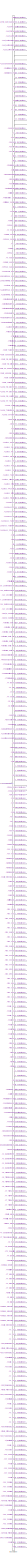
[diagram: root canvas - part 1/19, left side, full height]
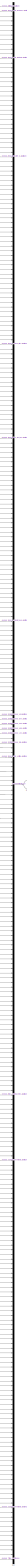
[diagram: root canvas - part 2/19, right side, full height]
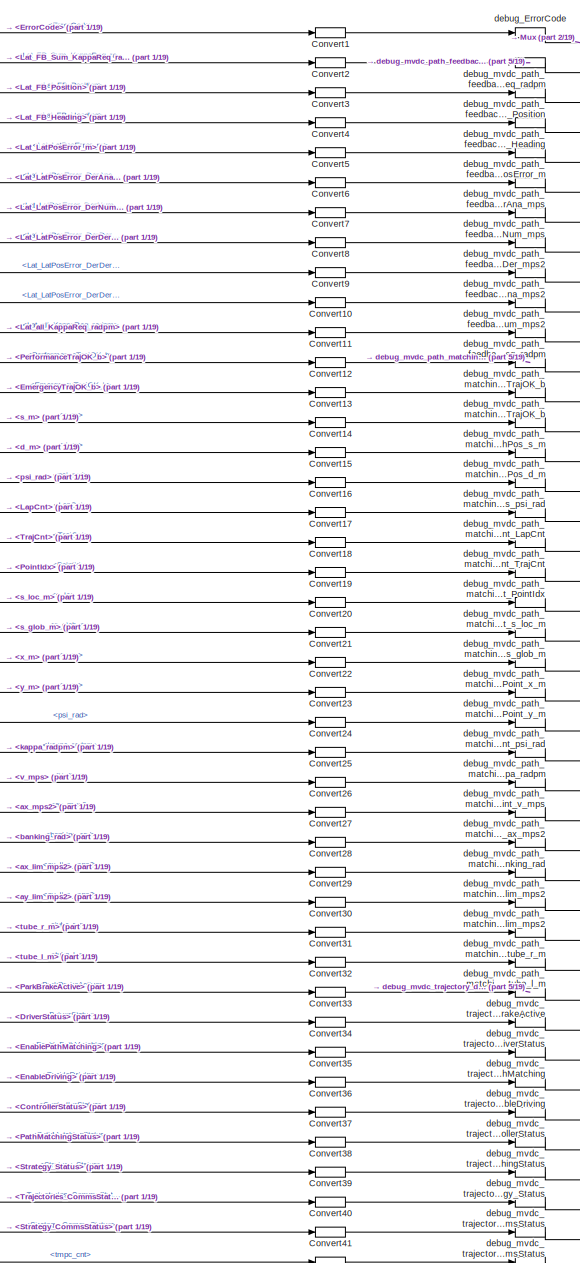
[diagram: root canvas - part 3/19, top center region]
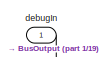
[diagram: root canvas - part 4/19, top left region]
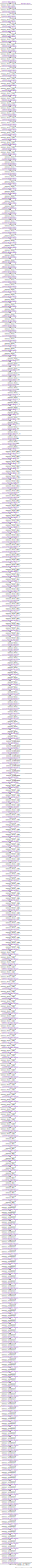
[diagram: root canvas - part 5/19, right side, full height]
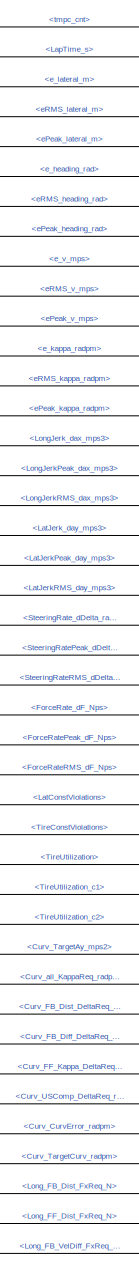
[diagram: root canvas - part 6/19, top center region]
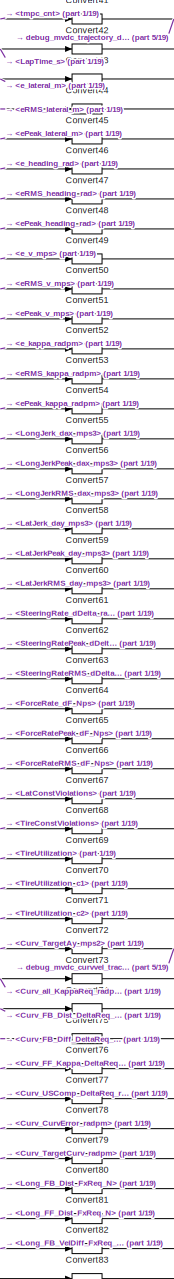
[diagram: root canvas - part 7/19, top center region]
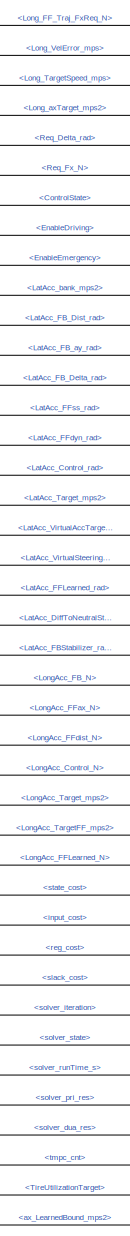
[diagram: root canvas - part 8/19, top center region]
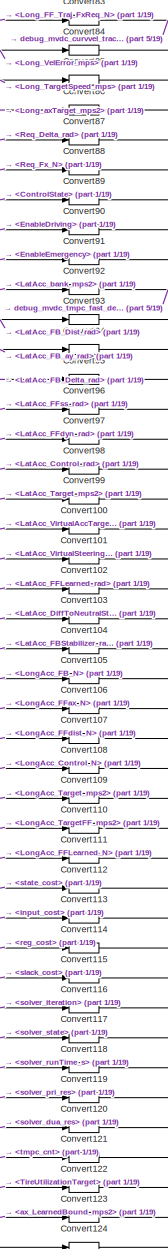
[diagram: root canvas - part 9/19, top center region]
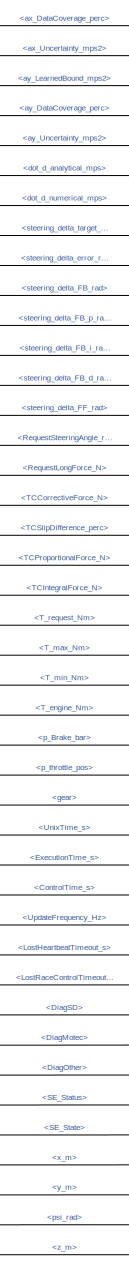
[diagram: root canvas - part 10/19, central region]
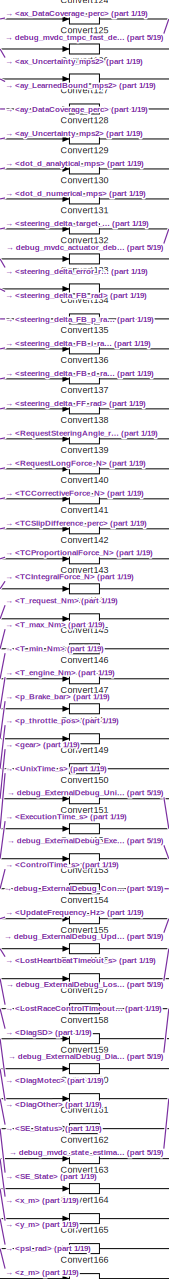
[diagram: root canvas - part 11/19, central region]
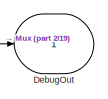
[diagram: root canvas - part 12/19, middle right region]
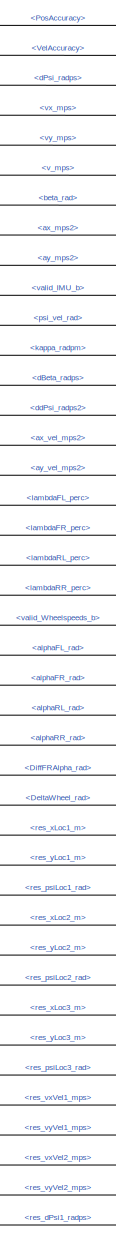
[diagram: root canvas - part 13/19, central region]
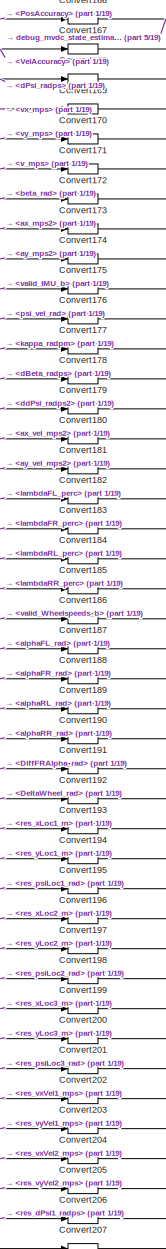
[diagram: root canvas - part 14/19, central region]
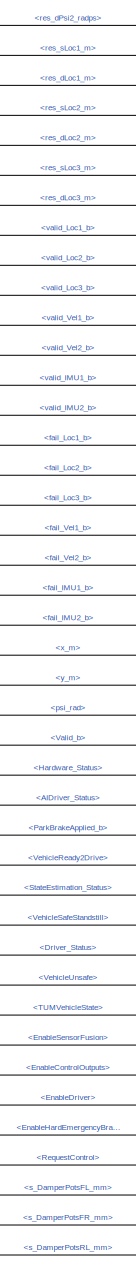
[diagram: root canvas - part 15/19, bottom center region]
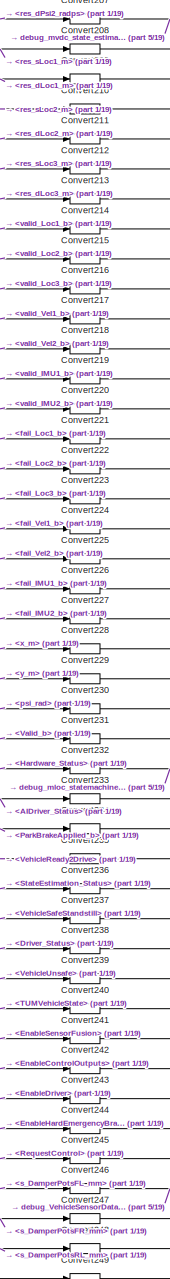
[diagram: root canvas - part 16/19, bottom center region]
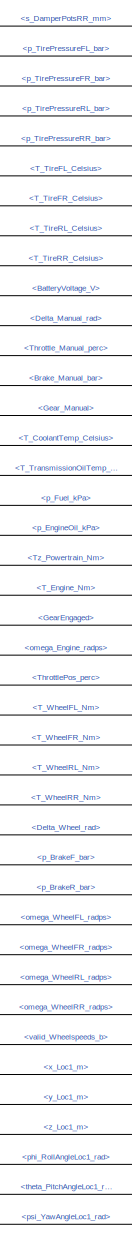
[diagram: root canvas - part 17/19, bottom center region]
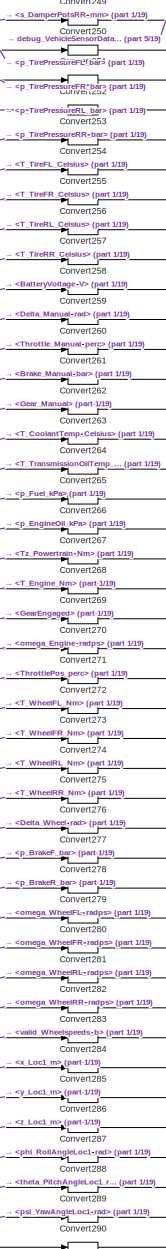
[diagram: root canvas - part 18/19, bottom center region]
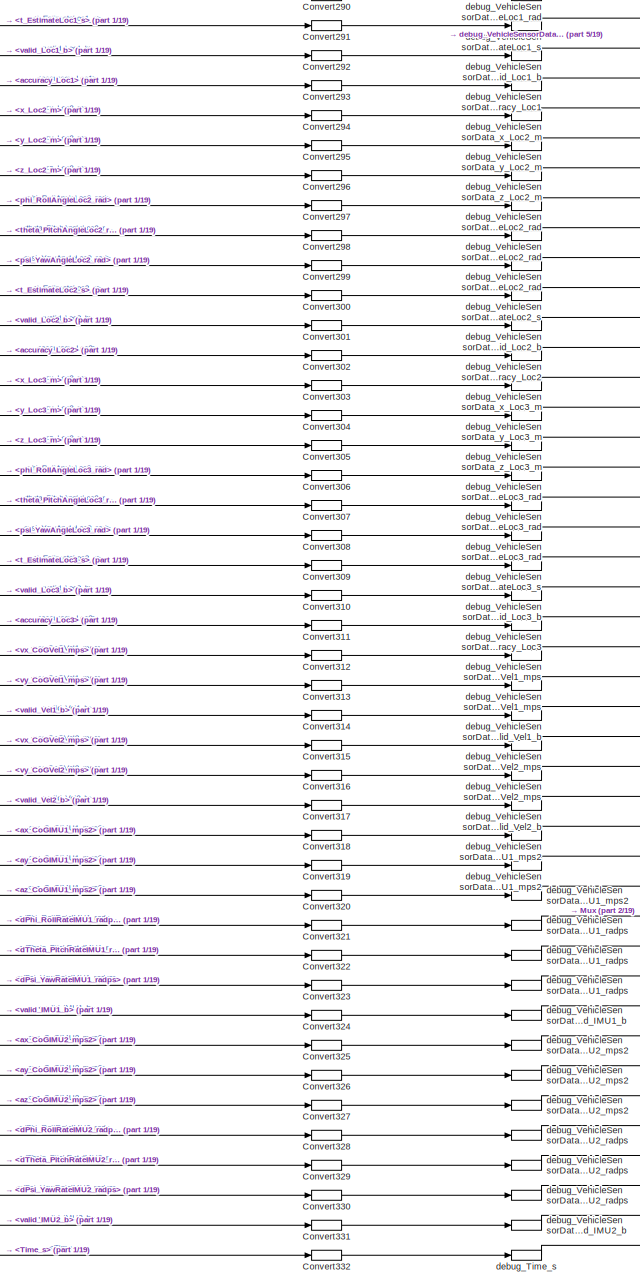
[diagram: root canvas - part 19/19, bottom center region]
MODEL slx_5026394dc431
KIND model
BLOCK [BusSelector] BusOutput
  OutputAsBus = off
  OutputSignals = ErrorCode,mvdc_path_feedback_debug.Lat_FB_Sum_KappaReq_radpm,mvdc_path_feedback_debug.Lat_FB_Position,mvdc_path_feedback_debug.Lat_FB_Heading,mvdc_path_feedback_debug.Lat_LatPosError_m,mvdc_path_feedback_debug.Lat_LatPosError_DerAna_mps,mvdc_path_feedback_debug.Lat_LatPosError_DerNum_mps,mvdc_path_feedback_debug.Lat_LatPosError_DerDer_mps2,mvdc_path_feedback_debug.Lat_LatPosError_DerDerAna_mps2,mv...<+13748ch>
  Ports = [1, 332]
BLOCK [DataTypeConversion] Convert1
  OutDataTypeStr = double
BLOCK [DataTypeConversion] Convert10
  OutDataTypeStr = double
BLOCK [DataTypeConversion] Convert100
  OutDataTypeStr = double
BLOCK [DataTypeConversion] Convert101
  OutDataTypeStr = double
BLOCK [DataTypeConversion] Convert102
  OutDataTypeStr = double
BLOCK [DataTypeConversion] Convert103
  OutDataTypeStr = double
BLOCK [DataTypeConversion] Convert104
  OutDataTypeStr = double
BLOCK [DataTypeConversion] Convert105
  OutDataTypeStr = double
BLOCK [DataTypeConversion] Convert106
  OutDataTypeStr = double
BLOCK [DataTypeConversion] Convert107
  OutDataTypeStr = double
BLOCK [DataTypeConversion] Convert108
  OutDataTypeStr = double
BLOCK [DataTypeConversion] Convert109
  OutDataTypeStr = double
BLOCK [DataTypeConversion] Convert11
  OutDataTypeStr = double
BLOCK [DataTypeConversion] Convert110
  OutDataTypeStr = double
BLOCK [DataTypeConversion] Convert111
  OutDataTypeStr = double
BLOCK [DataTypeConversion] Convert112
  OutDataTypeStr = double
BLOCK [DataTypeConversion] Convert113
  OutDataTypeStr = double
BLOCK [DataTypeConversion] Convert114
  OutDataTypeStr = double
BLOCK [DataTypeConversion] Convert115
  OutDataTypeStr = double
BLOCK [DataTypeConversion] Convert116
  OutDataTypeStr = double
BLOCK [DataTypeConversion] Convert117
  OutDataTypeStr = double
BLOCK [DataTypeConversion] Convert118
  OutDataTypeStr = double
BLOCK [DataTypeConversion] Convert119
  OutDataTypeStr = double
BLOCK [DataTypeConversion] Convert12
  OutDataTypeStr = double
BLOCK [DataTypeConversion] Convert120
  OutDataTypeStr = double
BLOCK [DataTypeConversion] Convert121
  OutDataTypeStr = double
BLOCK [DataTypeConversion] Convert122
  OutDataTypeStr = double
BLOCK [DataTypeConversion] Convert123
  OutDataTypeStr = double
BLOCK [DataTypeConversion] Convert124
  OutDataTypeStr = double
BLOCK [DataTypeConversion] Convert125
  OutDataTypeStr = double
BLOCK [DataTypeConversion] Convert126
  OutDataTypeStr = double
BLOCK [DataTypeConversion] Convert127
  OutDataTypeStr = double
BLOCK [DataTypeConversion] Convert128
  OutDataTypeStr = double
BLOCK [DataTypeConversion] Convert129
  OutDataTypeStr = double
BLOCK [DataTypeConversion] Convert13
  OutDataTypeStr = double
BLOCK [DataTypeConversion] Convert130
  OutDataTypeStr = double
BLOCK [DataTypeConversion] Convert131
  OutDataTypeStr = double
BLOCK [DataTypeConversion] Convert132
  OutDataTypeStr = double
BLOCK [DataTypeConversion] Convert133
  OutDataTypeStr = double
BLOCK [DataTypeConversion] Convert134
  OutDataTypeStr = double
BLOCK [DataTypeConversion] Convert135
  OutDataTypeStr = double
BLOCK [DataTypeConversion] Convert136
  OutDataTypeStr = double
BLOCK [DataTypeConversion] Convert137
  OutDataTypeStr = double
BLOCK [DataTypeConversion] Convert138
  OutDataTypeStr = double
BLOCK [DataTypeConversion] Convert139
  OutDataTypeStr = double
BLOCK [DataTypeConversion] Convert14
  OutDataTypeStr = double
BLOCK [DataTypeConversion] Convert140
  OutDataTypeStr = double
BLOCK [DataTypeConversion] Convert141
  OutDataTypeStr = double
BLOCK [DataTypeConversion] Convert142
  OutDataTypeStr = double
BLOCK [DataTypeConversion] Convert143
  OutDataTypeStr = double
BLOCK [DataTypeConversion] Convert144
  OutDataTypeStr = double
BLOCK [DataTypeConversion] Convert145
  OutDataTypeStr = double
BLOCK [DataTypeConversion] Convert146
  OutDataTypeStr = double
BLOCK [DataTypeConversion] Convert147
  OutDataTypeStr = double
BLOCK [DataTypeConversion] Convert148
  OutDataTypeStr = double
BLOCK [DataTypeConversion] Convert149
  OutDataTypeStr = double
BLOCK [DataTypeConversion] Convert15
  OutDataTypeStr = double
BLOCK [DataTypeConversion] Convert150
  OutDataTypeStr = double
BLOCK [DataTypeConversion] Convert151
  OutDataTypeStr = double
BLOCK [DataTypeConversion] Convert152
  OutDataTypeStr = double
BLOCK [DataTypeConversion] Convert153
  OutDataTypeStr = double
BLOCK [DataTypeConversion] Convert154
  OutDataTypeStr = double
BLOCK [DataTypeConversion] Convert155
  OutDataTypeStr = double
BLOCK [DataTypeConversion] Convert156
  OutDataTypeStr = double
BLOCK [DataTypeConversion] Convert157
  OutDataTypeStr = double
BLOCK [DataTypeConversion] Convert158
  OutDataTypeStr = double
BLOCK [DataTypeConversion] Convert159
  OutDataTypeStr = double
BLOCK [DataTypeConversion] Convert16
  OutDataTypeStr = double
BLOCK [DataTypeConversion] Convert160
  OutDataTypeStr = double
BLOCK [DataTypeConversion] Convert161
  OutDataTypeStr = double
BLOCK [DataTypeConversion] Convert162
  OutDataTypeStr = double
BLOCK [DataTypeConversion] Convert163
  OutDataTypeStr = double
BLOCK [DataTypeConversion] Convert164
  OutDataTypeStr = double
BLOCK [DataTypeConversion] Convert165
  OutDataTypeStr = double
BLOCK [DataTypeConversion] Convert166
  OutDataTypeStr = double
BLOCK [DataTypeConversion] Convert167
  OutDataTypeStr = double
BLOCK [DataTypeConversion] Convert168
  OutDataTypeStr = double
BLOCK [DataTypeConversion] Convert169
  OutDataTypeStr = double
BLOCK [DataTypeConversion] Convert17
  OutDataTypeStr = double
BLOCK [DataTypeConversion] Convert170
  OutDataTypeStr = double
BLOCK [DataTypeConversion] Convert171
  OutDataTypeStr = double
BLOCK [DataTypeConversion] Convert172
  OutDataTypeStr = double
BLOCK [DataTypeConversion] Convert173
  OutDataTypeStr = double
BLOCK [DataTypeConversion] Convert174
  OutDataTypeStr = double
BLOCK [DataTypeConversion] Convert175
  OutDataTypeStr = double
BLOCK [DataTypeConversion] Convert176
  OutDataTypeStr = double
BLOCK [DataTypeConversion] Convert177
  OutDataTypeStr = double
BLOCK [DataTypeConversion] Convert178
  OutDataTypeStr = double
BLOCK [DataTypeConversion] Convert179
  OutDataTypeStr = double
BLOCK [DataTypeConversion] Convert18
  OutDataTypeStr = double
BLOCK [DataTypeConversion] Convert180
  OutDataTypeStr = double
BLOCK [DataTypeConversion] Convert181
  OutDataTypeStr = double
BLOCK [DataTypeConversion] Convert182
  OutDataTypeStr = double
BLOCK [DataTypeConversion] Convert183
  OutDataTypeStr = double
BLOCK [DataTypeConversion] Convert184
  OutDataTypeStr = double
BLOCK [DataTypeConversion] Convert185
  OutDataTypeStr = double
BLOCK [DataTypeConversion] Convert186
  OutDataTypeStr = double
BLOCK [DataTypeConversion] Convert187
  OutDataTypeStr = double
BLOCK [DataTypeConversion] Convert188
  OutDataTypeStr = double
BLOCK [DataTypeConversion] Convert189
  OutDataTypeStr = double
BLOCK [DataTypeConversion] Convert19
  OutDataTypeStr = double
BLOCK [DataTypeConversion] Convert190
  OutDataTypeStr = double
BLOCK [DataTypeConversion] Convert191
  OutDataTypeStr = double
BLOCK [DataTypeConversion] Convert192
  OutDataTypeStr = double
BLOCK [DataTypeConversion] Convert193
  OutDataTypeStr = double
BLOCK [DataTypeConversion] Convert194
  OutDataTypeStr = double
BLOCK [DataTypeConversion] Convert195
  OutDataTypeStr = double
BLOCK [DataTypeConversion] Convert196
  OutDataTypeStr = double
BLOCK [DataTypeConversion] Convert197
  OutDataTypeStr = double
BLOCK [DataTypeConversion] Convert198
  OutDataTypeStr = double
BLOCK [DataTypeConversion] Convert199
  OutDataTypeStr = double
BLOCK [DataTypeConversion] Convert2
  OutDataTypeStr = double
BLOCK [DataTypeConversion] Convert20
  OutDataTypeStr = double
BLOCK [DataTypeConversion] Convert200
  OutDataTypeStr = double
BLOCK [DataTypeConversion] Convert201
  OutDataTypeStr = double
BLOCK [DataTypeConversion] Convert202
  OutDataTypeStr = double
BLOCK [DataTypeConversion] Convert203
  OutDataTypeStr = double
BLOCK [DataTypeConversion] Convert204
  OutDataTypeStr = double
BLOCK [DataTypeConversion] Convert205
  OutDataTypeStr = double
BLOCK [DataTypeConversion] Convert206
  OutDataTypeStr = double
BLOCK [DataTypeConversion] Convert207
  OutDataTypeStr = double
BLOCK [DataTypeConversion] Convert208
  OutDataTypeStr = double
BLOCK [DataTypeConversion] Convert209
  OutDataTypeStr = double
BLOCK [DataTypeConversion] Convert21
  OutDataTypeStr = double
BLOCK [DataTypeConversion] Convert210
  OutDataTypeStr = double
BLOCK [DataTypeConversion] Convert211
  OutDataTypeStr = double
BLOCK [DataTypeConversion] Convert212
  OutDataTypeStr = double
BLOCK [DataTypeConversion] Convert213
  OutDataTypeStr = double
BLOCK [DataTypeConversion] Convert214
  OutDataTypeStr = double
BLOCK [DataTypeConversion] Convert215
  OutDataTypeStr = double
BLOCK [DataTypeConversion] Convert216
  OutDataTypeStr = double
BLOCK [DataTypeConversion] Convert217
  OutDataTypeStr = double
BLOCK [DataTypeConversion] Convert218
  OutDataTypeStr = double
BLOCK [DataTypeConversion] Convert219
  OutDataTypeStr = double
BLOCK [DataTypeConversion] Convert22
  OutDataTypeStr = double
BLOCK [DataTypeConversion] Convert220
  OutDataTypeStr = double
BLOCK [DataTypeConversion] Convert221
  OutDataTypeStr = double
BLOCK [DataTypeConversion] Convert222
  OutDataTypeStr = double
BLOCK [DataTypeConversion] Convert223
  OutDataTypeStr = double
BLOCK [DataTypeConversion] Convert224
  OutDataTypeStr = double
BLOCK [DataTypeConversion] Convert225
  OutDataTypeStr = double
BLOCK [DataTypeConversion] Convert226
  OutDataTypeStr = double
BLOCK [DataTypeConversion] Convert227
  OutDataTypeStr = double
BLOCK [DataTypeConversion] Convert228
  OutDataTypeStr = double
BLOCK [DataTypeConversion] Convert229
  OutDataTypeStr = double
BLOCK [DataTypeConversion] Convert23
  OutDataTypeStr = double
BLOCK [DataTypeConversion] Convert230
  OutDataTypeStr = double
BLOCK [DataTypeConversion] Convert231
  OutDataTypeStr = double
BLOCK [DataTypeConversion] Convert232
  OutDataTypeStr = double
BLOCK [DataTypeConversion] Convert233
  OutDataTypeStr = double
BLOCK [DataTypeConversion] Convert234
  OutDataTypeStr = double
BLOCK [DataTypeConversion] Convert235
  OutDataTypeStr = double
BLOCK [DataTypeConversion] Convert236
  OutDataTypeStr = double
BLOCK [DataTypeConversion] Convert237
  OutDataTypeStr = double
BLOCK [DataTypeConversion] Convert238
  OutDataTypeStr = double
BLOCK [DataTypeConversion] Convert239
  OutDataTypeStr = double
BLOCK [DataTypeConversion] Convert24
  OutDataTypeStr = double
BLOCK [DataTypeConversion] Convert240
  OutDataTypeStr = double
BLOCK [DataTypeConversion] Convert241
  OutDataTypeStr = double
BLOCK [DataTypeConversion] Convert242
  OutDataTypeStr = double
BLOCK [DataTypeConversion] Convert243
  OutDataTypeStr = double
BLOCK [DataTypeConversion] Convert244
  OutDataTypeStr = double
BLOCK [DataTypeConversion] Convert245
  OutDataTypeStr = double
BLOCK [DataTypeConversion] Convert246
  OutDataTypeStr = double
BLOCK [DataTypeConversion] Convert247
  OutDataTypeStr = double
BLOCK [DataTypeConversion] Convert248
  OutDataTypeStr = double
BLOCK [DataTypeConversion] Convert249
  OutDataTypeStr = double
BLOCK [DataTypeConversion] Convert25
  OutDataTypeStr = double
BLOCK [DataTypeConversion] Convert250
  OutDataTypeStr = double
BLOCK [DataTypeConversion] Convert251
  OutDataTypeStr = double
BLOCK [DataTypeConversion] Convert252
  OutDataTypeStr = double
BLOCK [DataTypeConversion] Convert253
  OutDataTypeStr = double
BLOCK [DataTypeConversion] Convert254
  OutDataTypeStr = double
BLOCK [DataTypeConversion] Convert255
  OutDataTypeStr = double
BLOCK [DataTypeConversion] Convert256
  OutDataTypeStr = double
BLOCK [DataTypeConversion] Convert257
  OutDataTypeStr = double
BLOCK [DataTypeConversion] Convert258
  OutDataTypeStr = double
BLOCK [DataTypeConversion] Convert259
  OutDataTypeStr = double
BLOCK [DataTypeConversion] Convert26
  OutDataTypeStr = double
BLOCK [DataTypeConversion] Convert260
  OutDataTypeStr = double
BLOCK [DataTypeConversion] Convert261
  OutDataTypeStr = double
BLOCK [DataTypeConversion] Convert262
  OutDataTypeStr = double
BLOCK [DataTypeConversion] Convert263
  OutDataTypeStr = double
BLOCK [DataTypeConversion] Convert264
  OutDataTypeStr = double
BLOCK [DataTypeConversion] Convert265
  OutDataTypeStr = double
BLOCK [DataTypeConversion] Convert266
  OutDataTypeStr = double
BLOCK [DataTypeConversion] Convert267
  OutDataTypeStr = double
BLOCK [DataTypeConversion] Convert268
  OutDataTypeStr = double
BLOCK [DataTypeConversion] Convert269
  OutDataTypeStr = double
BLOCK [DataTypeConversion] Convert27
  OutDataTypeStr = double
BLOCK [DataTypeConversion] Convert270
  OutDataTypeStr = double
BLOCK [DataTypeConversion] Convert271
  OutDataTypeStr = double
BLOCK [DataTypeConversion] Convert272
  OutDataTypeStr = double
BLOCK [DataTypeConversion] Convert273
  OutDataTypeStr = double
BLOCK [DataTypeConversion] Convert274
  OutDataTypeStr = double
BLOCK [DataTypeConversion] Convert275
  OutDataTypeStr = double
BLOCK [DataTypeConversion] Convert276
  OutDataTypeStr = double
BLOCK [DataTypeConversion] Convert277
  OutDataTypeStr = double
BLOCK [DataTypeConversion] Convert278
  OutDataTypeStr = double
BLOCK [DataTypeConversion] Convert279
  OutDataTypeStr = double
BLOCK [DataTypeConversion] Convert28
  OutDataTypeStr = double
BLOCK [DataTypeConversion] Convert280
  OutDataTypeStr = double
BLOCK [DataTypeConversion] Convert281
  OutDataTypeStr = double
BLOCK [DataTypeConversion] Convert282
  OutDataTypeStr = double
BLOCK [DataTypeConversion] Convert283
  OutDataTypeStr = double
BLOCK [DataTypeConversion] Convert284
  OutDataTypeStr = double
BLOCK [DataTypeConversion] Convert285
  OutDataTypeStr = double
BLOCK [DataTypeConversion] Convert286
  OutDataTypeStr = double
BLOCK [DataTypeConversion] Convert287
  OutDataTypeStr = double
BLOCK [DataTypeConversion] Convert288
  OutDataTypeStr = double
BLOCK [DataTypeConversion] Convert289
  OutDataTypeStr = double
BLOCK [DataTypeConversion] Convert29
  OutDataTypeStr = double
BLOCK [DataTypeConversion] Convert290
  OutDataTypeStr = double
BLOCK [DataTypeConversion] Convert291
  OutDataTypeStr = double
BLOCK [DataTypeConversion] Convert292
  OutDataTypeStr = double
BLOCK [DataTypeConversion] Convert293
  OutDataTypeStr = double
BLOCK [DataTypeConversion] Convert294
  OutDataTypeStr = double
BLOCK [DataTypeConversion] Convert295
  OutDataTypeStr = double
BLOCK [DataTypeConversion] Convert296
  OutDataTypeStr = double
BLOCK [DataTypeConversion] Convert297
  OutDataTypeStr = double
BLOCK [DataTypeConversion] Convert298
  OutDataTypeStr = double
BLOCK [DataTypeConversion] Convert299
  OutDataTypeStr = double
BLOCK [DataTypeConversion] Convert3
  OutDataTypeStr = double
BLOCK [DataTypeConversion] Convert30
  OutDataTypeStr = double
BLOCK [DataTypeConversion] Convert300
  OutDataTypeStr = double
BLOCK [DataTypeConversion] Convert301
  OutDataTypeStr = double
BLOCK [DataTypeConversion] Convert302
  OutDataTypeStr = double
BLOCK [DataTypeConversion] Convert303
  OutDataTypeStr = double
BLOCK [DataTypeConversion] Convert304
  OutDataTypeStr = double
BLOCK [DataTypeConversion] Convert305
  OutDataTypeStr = double
BLOCK [DataTypeConversion] Convert306
  OutDataTypeStr = double
BLOCK [DataTypeConversion] Convert307
  OutDataTypeStr = double
BLOCK [DataTypeConversion] Convert308
  OutDataTypeStr = double
BLOCK [DataTypeConversion] Convert309
  OutDataTypeStr = double
BLOCK [DataTypeConversion] Convert31
  OutDataTypeStr = double
BLOCK [DataTypeConversion] Convert310
  OutDataTypeStr = double
BLOCK [DataTypeConversion] Convert311
  OutDataTypeStr = double
BLOCK [DataTypeConversion] Convert312
  OutDataTypeStr = double
BLOCK [DataTypeConversion] Convert313
  OutDataTypeStr = double
BLOCK [DataTypeConversion] Convert314
  OutDataTypeStr = double
BLOCK [DataTypeConversion] Convert315
  OutDataTypeStr = double
BLOCK [DataTypeConversion] Convert316
  OutDataTypeStr = double
BLOCK [DataTypeConversion] Convert317
  OutDataTypeStr = double
BLOCK [DataTypeConversion] Convert318
  OutDataTypeStr = double
BLOCK [DataTypeConversion] Convert319
  OutDataTypeStr = double
BLOCK [DataTypeConversion] Convert32
  OutDataTypeStr = double
BLOCK [DataTypeConversion] Convert320
  OutDataTypeStr = double
BLOCK [DataTypeConversion] Convert321
  OutDataTypeStr = double
BLOCK [DataTypeConversion] Convert322
  OutDataTypeStr = double
BLOCK [DataTypeConversion] Convert323
  OutDataTypeStr = double
BLOCK [DataTypeConversion] Convert324
  OutDataTypeStr = double
BLOCK [DataTypeConversion] Convert325
  OutDataTypeStr = double
BLOCK [DataTypeConversion] Convert326
  OutDataTypeStr = double
BLOCK [DataTypeConversion] Convert327
  OutDataTypeStr = double
BLOCK [DataTypeConversion] Convert328
  OutDataTypeStr = double
BLOCK [DataTypeConversion] Convert329
  OutDataTypeStr = double
BLOCK [DataTypeConversion] Convert33
  OutDataTypeStr = double
BLOCK [DataTypeConversion] Convert330
  OutDataTypeStr = double
BLOCK [DataTypeConversion] Convert331
  OutDataTypeStr = double
BLOCK [DataTypeConversion] Convert332
  OutDataTypeStr = double
BLOCK [DataTypeConversion] Convert34
  OutDataTypeStr = double
BLOCK [DataTypeConversion] Convert35
  OutDataTypeStr = double
BLOCK [DataTypeConversion] Convert36
  OutDataTypeStr = double
BLOCK [DataTypeConversion] Convert37
  OutDataTypeStr = double
BLOCK [DataTypeConversion] Convert38
  OutDataTypeStr = double
BLOCK [DataTypeConversion] Convert39
  OutDataTypeStr = double
BLOCK [DataTypeConversion] Convert4
  OutDataTypeStr = double
BLOCK [DataTypeConversion] Convert40
  OutDataTypeStr = double
BLOCK [DataTypeConversion] Convert41
  OutDataTypeStr = double
BLOCK [DataTypeConversion] Convert42
  OutDataTypeStr = double
BLOCK [DataTypeConversion] Convert43
  OutDataTypeStr = double
BLOCK [DataTypeConversion] Convert44
  OutDataTypeStr = double
BLOCK [DataTypeConversion] Convert45
  OutDataTypeStr = double
BLOCK [DataTypeConversion] Convert46
  OutDataTypeStr = double
BLOCK [DataTypeConversion] Convert47
  OutDataTypeStr = double
BLOCK [DataTypeConversion] Convert48
  OutDataTypeStr = double
BLOCK [DataTypeConversion] Convert49
  OutDataTypeStr = double
BLOCK [DataTypeConversion] Convert5
  OutDataTypeStr = double
BLOCK [DataTypeConversion] Convert50
  OutDataTypeStr = double
BLOCK [DataTypeConversion] Convert51
  OutDataTypeStr = double
BLOCK [DataTypeConversion] Convert52
  OutDataTypeStr = double
BLOCK [DataTypeConversion] Convert53
  OutDataTypeStr = double
BLOCK [DataTypeConversion] Convert54
  OutDataTypeStr = double
BLOCK [DataTypeConversion] Convert55
  OutDataTypeStr = double
BLOCK [DataTypeConversion] Convert56
  OutDataTypeStr = double
BLOCK [DataTypeConversion] Convert57
  OutDataTypeStr = double
BLOCK [DataTypeConversion] Convert58
  OutDataTypeStr = double
BLOCK [DataTypeConversion] Convert59
  OutDataTypeStr = double
BLOCK [DataTypeConversion] Convert6
  OutDataTypeStr = double
BLOCK [DataTypeConversion] Convert60
  OutDataTypeStr = double
BLOCK [DataTypeConversion] Convert61
  OutDataTypeStr = double
BLOCK [DataTypeConversion] Convert62
  OutDataTypeStr = double
BLOCK [DataTypeConversion] Convert63
  OutDataTypeStr = double
BLOCK [DataTypeConversion] Convert64
  OutDataTypeStr = double
BLOCK [DataTypeConversion] Convert65
  OutDataTypeStr = double
BLOCK [DataTypeConversion] Convert66
  OutDataTypeStr = double
BLOCK [DataTypeConversion] Convert67
  OutDataTypeStr = double
BLOCK [DataTypeConversion] Convert68
  OutDataTypeStr = double
BLOCK [DataTypeConversion] Convert69
  OutDataTypeStr = double
BLOCK [DataTypeConversion] Convert7
  OutDataTypeStr = double
BLOCK [DataTypeConversion] Convert70
  OutDataTypeStr = double
BLOCK [DataTypeConversion] Convert71
  OutDataTypeStr = double
BLOCK [DataTypeConversion] Convert72
  OutDataTypeStr = double
BLOCK [DataTypeConversion] Convert73
  OutDataTypeStr = double
BLOCK [DataTypeConversion] Convert74
  OutDataTypeStr = double
BLOCK [DataTypeConversion] Convert75
  OutDataTypeStr = double
BLOCK [DataTypeConversion] Convert76
  OutDataTypeStr = double
BLOCK [DataTypeConversion] Convert77
  OutDataTypeStr = double
BLOCK [DataTypeConversion] Convert78
  OutDataTypeStr = double
BLOCK [DataTypeConversion] Convert79
  OutDataTypeStr = double
BLOCK [DataTypeConversion] Convert8
  OutDataTypeStr = double
BLOCK [DataTypeConversion] Convert80
  OutDataTypeStr = double
BLOCK [DataTypeConversion] Convert81
  OutDataTypeStr = double
BLOCK [DataTypeConversion] Convert82
  OutDataTypeStr = double
BLOCK [DataTypeConversion] Convert83
  OutDataTypeStr = double
BLOCK [DataTypeConversion] Convert84
  OutDataTypeStr = double
BLOCK [DataTypeConversion] Convert85
  OutDataTypeStr = double
BLOCK [DataTypeConversion] Convert86
  OutDataTypeStr = double
BLOCK [DataTypeConversion] Convert87
  OutDataTypeStr = double
BLOCK [DataTypeConversion] Convert88
  OutDataTypeStr = double
BLOCK [DataTypeConversion] Convert89
  OutDataTypeStr = double
BLOCK [DataTypeConversion] Convert9
  OutDataTypeStr = double
BLOCK [DataTypeConversion] Convert90
  OutDataTypeStr = double
BLOCK [DataTypeConversion] Convert91
  OutDataTypeStr = double
BLOCK [DataTypeConversion] Convert92
  OutDataTypeStr = double
BLOCK [DataTypeConversion] Convert93
  OutDataTypeStr = double
BLOCK [DataTypeConversion] Convert94
  OutDataTypeStr = double
BLOCK [DataTypeConversion] Convert95
  OutDataTypeStr = double
BLOCK [DataTypeConversion] Convert96
  OutDataTypeStr = double
BLOCK [DataTypeConversion] Convert97
  OutDataTypeStr = double
BLOCK [DataTypeConversion] Convert98
  OutDataTypeStr = double
BLOCK [DataTypeConversion] Convert99
  OutDataTypeStr = double
BLOCK [Outport] DebugOut
  IconDisplay = Port number
BLOCK [Mux] Mux
  DisplayOption = bar
  Inputs = 332
  Ports = [332, 1]
BLOCK [Inport] debugIn
  IconDisplay = Port number
  OutDataTypeStr = Bus: mvdc_vehicle_dynamics_control_debug
BLOCK [SignalConversion] debug_ErrorCode
  OverrideOpt = off
BLOCK [SignalConversion] debug_ExternalDebug_ControlTime_s
  OverrideOpt = off
BLOCK [SignalConversion] debug_ExternalDebug_DiagMotec
  OverrideOpt = off
BLOCK [SignalConversion] debug_ExternalDebug_DiagOther
  OverrideOpt = off
BLOCK [SignalConversion] debug_ExternalDebug_DiagSD
  OverrideOpt = off
BLOCK [SignalConversion] debug_ExternalDebug_ExecutionTime_s
  OverrideOpt = off
BLOCK [SignalConversion] debug_ExternalDebug_LostHeartbeatTimeout_s
  OverrideOpt = off
BLOCK [SignalConversion] debug_ExternalDebug_LostRaceControlTimeout_s
  OverrideOpt = off
BLOCK [SignalConversion] debug_ExternalDebug_UnixTime_s
  OverrideOpt = off
BLOCK [SignalConversion] debug_ExternalDebug_UpdateFrequency_Hz
  OverrideOpt = off
BLOCK [SignalConversion] debug_Time_s
  OverrideOpt = off
BLOCK [SignalConversion] debug_VehicleSensorData_BatteryVoltage_V
  OverrideOpt = off
BLOCK [SignalConversion] debug_VehicleSensorData_Brake_Manual_bar
  OverrideOpt = off
BLOCK [SignalConversion] debug_VehicleSensorData_Delta_Manual_rad
  OverrideOpt = off
BLOCK [SignalConversion] debug_VehicleSensorData_Delta_Wheel_rad
  OverrideOpt = off
BLOCK [SignalConversion] debug_VehicleSensorData_GearEngaged
  OverrideOpt = off
BLOCK [SignalConversion] debug_VehicleSensorData_Gear_Manual
  OverrideOpt = off
BLOCK [SignalConversion] debug_VehicleSensorData_T_CoolantTemp_Celsius
  OverrideOpt = off
BLOCK [SignalConversion] debug_VehicleSensorData_T_Engine_Nm
  OverrideOpt = off
BLOCK [SignalConversion] debug_VehicleSensorData_T_TireFL_Celsius
  OverrideOpt = off
BLOCK [SignalConversion] debug_VehicleSensorData_T_TireFR_Celsius
  OverrideOpt = off
BLOCK [SignalConversion] debug_VehicleSensorData_T_TireRL_Celsius
  OverrideOpt = off
BLOCK [SignalConversion] debug_VehicleSensorData_T_TireRR_Celsius
  OverrideOpt = off
BLOCK [SignalConversion] debug_VehicleSensorData_T_TransmissionOilTemp_Celsius
  OverrideOpt = off
BLOCK [SignalConversion] debug_VehicleSensorData_T_WheelFL_Nm
  OverrideOpt = off
BLOCK [SignalConversion] debug_VehicleSensorData_T_WheelFR_Nm
  OverrideOpt = off
BLOCK [SignalConversion] debug_VehicleSensorData_T_WheelRL_Nm
  OverrideOpt = off
BLOCK [SignalConversion] debug_VehicleSensorData_T_WheelRR_Nm
  OverrideOpt = off
BLOCK [SignalConversion] debug_VehicleSensorData_ThrottlePos_perc
  OverrideOpt = off
BLOCK [SignalConversion] debug_VehicleSensorData_Throttle_Manual_perc
  OverrideOpt = off
BLOCK [SignalConversion] debug_VehicleSensorData_Tz_Powertrain_Nm
  OverrideOpt = off
BLOCK [SignalConversion] debug_VehicleSensorData_accuracy_Loc1
  OverrideOpt = off
BLOCK [SignalConversion] debug_VehicleSensorData_accuracy_Loc2
  OverrideOpt = off
BLOCK [SignalConversion] debug_VehicleSensorData_accuracy_Loc3
  OverrideOpt = off
BLOCK [SignalConversion] debug_VehicleSensorData_ax_CoGIMU1_mps2
  OverrideOpt = off
BLOCK [SignalConversion] debug_VehicleSensorData_ax_CoGIMU2_mps2
  OverrideOpt = off
BLOCK [SignalConversion] debug_VehicleSensorData_ay_CoGIMU1_mps2
  OverrideOpt = off
BLOCK [SignalConversion] debug_VehicleSensorData_ay_CoGIMU2_mps2
  OverrideOpt = off
BLOCK [SignalConversion] debug_VehicleSensorData_az_CoGIMU1_mps2
  OverrideOpt = off
BLOCK [SignalConversion] debug_VehicleSensorData_az_CoGIMU2_mps2
  OverrideOpt = off
BLOCK [SignalConversion] debug_VehicleSensorData_dPhi_RollRateIMU1_radps
  OverrideOpt = off
BLOCK [SignalConversion] debug_VehicleSensorData_dPhi_RollRateIMU2_radps
  OverrideOpt = off
BLOCK [SignalConversion] debug_VehicleSensorData_dPsi_YawRateIMU1_radps
  OverrideOpt = off
BLOCK [SignalConversion] debug_VehicleSensorData_dPsi_YawRateIMU2_radps
  OverrideOpt = off
BLOCK [SignalConversion] debug_VehicleSensorData_dTheta_PitchRateIMU1_radps
  OverrideOpt = off
BLOCK [SignalConversion] debug_VehicleSensorData_dTheta_PitchRateIMU2_radps
  OverrideOpt = off
BLOCK [SignalConversion] debug_VehicleSensorData_omega_Engine_radps
  OverrideOpt = off
BLOCK [SignalConversion] debug_VehicleSensorData_omega_WheelFL_radps
  OverrideOpt = off
BLOCK [SignalConversion] debug_VehicleSensorData_omega_WheelFR_radps
  OverrideOpt = off
BLOCK [SignalConversion] debug_VehicleSensorData_omega_WheelRL_radps
  OverrideOpt = off
BLOCK [SignalConversion] debug_VehicleSensorData_omega_WheelRR_radps
  OverrideOpt = off
BLOCK [SignalConversion] debug_VehicleSensorData_p_BrakeF_bar
  OverrideOpt = off
BLOCK [SignalConversion] debug_VehicleSensorData_p_BrakeR_bar
  OverrideOpt = off
BLOCK [SignalConversion] debug_VehicleSensorData_p_EngineOil_kPa
  OverrideOpt = off
BLOCK [SignalConversion] debug_VehicleSensorData_p_Fuel_kPa
  OverrideOpt = off
BLOCK [SignalConversion] debug_VehicleSensorData_p_TirePressureFL_bar
  OverrideOpt = off
BLOCK [SignalConversion] debug_VehicleSensorData_p_TirePressureFR_bar
  OverrideOpt = off
BLOCK [SignalConversion] debug_VehicleSensorData_p_TirePressureRL_bar
  OverrideOpt = off
BLOCK [SignalConversion] debug_VehicleSensorData_p_TirePressureRR_bar
  OverrideOpt = off
BLOCK [SignalConversion] debug_VehicleSensorData_phi_RollAngleLoc1_rad
  OverrideOpt = off
BLOCK [SignalConversion] debug_VehicleSensorData_phi_RollAngleLoc2_rad
  OverrideOpt = off
BLOCK [SignalConversion] debug_VehicleSensorData_phi_RollAngleLoc3_rad
  OverrideOpt = off
BLOCK [SignalConversion] debug_VehicleSensorData_psi_YawAngleLoc1_rad
  OverrideOpt = off
BLOCK [SignalConversion] debug_VehicleSensorData_psi_YawAngleLoc2_rad
  OverrideOpt = off
BLOCK [SignalConversion] debug_VehicleSensorData_psi_YawAngleLoc3_rad
  OverrideOpt = off
BLOCK [SignalConversion] debug_VehicleSensorData_s_DamperPotsFL_mm
  OverrideOpt = off
BLOCK [SignalConversion] debug_VehicleSensorData_s_DamperPotsFR_mm
  OverrideOpt = off
BLOCK [SignalConversion] debug_VehicleSensorData_s_DamperPotsRL_mm
  OverrideOpt = off
BLOCK [SignalConversion] debug_VehicleSensorData_s_DamperPotsRR_mm
  OverrideOpt = off
BLOCK [SignalConversion] debug_VehicleSensorData_t_EstimateLoc1_s
  OverrideOpt = off
BLOCK [SignalConversion] debug_VehicleSensorData_t_EstimateLoc2_s
  OverrideOpt = off
BLOCK [SignalConversion] debug_VehicleSensorData_t_EstimateLoc3_s
  OverrideOpt = off
BLOCK [SignalConversion] debug_VehicleSensorData_theta_PitchAngleLoc1_rad
  OverrideOpt = off
BLOCK [SignalConversion] debug_VehicleSensorData_theta_PitchAngleLoc2_rad
  OverrideOpt = off
BLOCK [SignalConversion] debug_VehicleSensorData_theta_PitchAngleLoc3_rad
  OverrideOpt = off
BLOCK [SignalConversion] debug_VehicleSensorData_valid_IMU1_b
  OverrideOpt = off
BLOCK [SignalConversion] debug_VehicleSensorData_valid_IMU2_b
  OverrideOpt = off
BLOCK [SignalConversion] debug_VehicleSensorData_valid_Loc1_b
  OverrideOpt = off
BLOCK [SignalConversion] debug_VehicleSensorData_valid_Loc2_b
  OverrideOpt = off
BLOCK [SignalConversion] debug_VehicleSensorData_valid_Loc3_b
  OverrideOpt = off
BLOCK [SignalConversion] debug_VehicleSensorData_valid_Vel1_b
  OverrideOpt = off
BLOCK [SignalConversion] debug_VehicleSensorData_valid_Vel2_b
  OverrideOpt = off
BLOCK [SignalConversion] debug_VehicleSensorData_valid_Wheelspeeds_b
  OverrideOpt = off
BLOCK [SignalConversion] debug_VehicleSensorData_vx_CoGVel1_mps
  OverrideOpt = off
BLOCK [SignalConversion] debug_VehicleSensorData_vx_CoGVel2_mps
  OverrideOpt = off
BLOCK [SignalConversion] debug_VehicleSensorData_vy_CoGVel1_mps
  OverrideOpt = off
BLOCK [SignalConversion] debug_VehicleSensorData_vy_CoGVel2_mps
  OverrideOpt = off
BLOCK [SignalConversion] debug_VehicleSensorData_x_Loc1_m
  OverrideOpt = off
BLOCK [SignalConversion] debug_VehicleSensorData_x_Loc2_m
  OverrideOpt = off
BLOCK [SignalConversion] debug_VehicleSensorData_x_Loc3_m
  OverrideOpt = off
BLOCK [SignalConversion] debug_VehicleSensorData_y_Loc1_m
  OverrideOpt = off
BLOCK [SignalConversion] debug_VehicleSensorData_y_Loc2_m
  OverrideOpt = off
BLOCK [SignalConversion] debug_VehicleSensorData_y_Loc3_m
  OverrideOpt = off
BLOCK [SignalConversion] debug_VehicleSensorData_z_Loc1_m
  OverrideOpt = off
BLOCK [SignalConversion] debug_VehicleSensorData_z_Loc2_m
  OverrideOpt = off
BLOCK [SignalConversion] debug_VehicleSensorData_z_Loc3_m
  OverrideOpt = off
BLOCK [SignalConversion] debug_mloc_statemachine_debug_AIDriver_Status
  OverrideOpt = off
BLOCK [SignalConversion] debug_mloc_statemachine_debug_Driver_Status
  OverrideOpt = off
BLOCK [SignalConversion] debug_mloc_statemachine_debug_EnableControlOutputs
  OverrideOpt = off
BLOCK [SignalConversion] debug_mloc_statemachine_debug_EnableDriver
  OverrideOpt = off
BLOCK [SignalConversion] debug_mloc_statemachine_debug_EnableHardEmergencyBrake
  OverrideOpt = off
BLOCK [SignalConversion] debug_mloc_statemachine_debug_EnableSensorFusion
  OverrideOpt = off
BLOCK [SignalConversion] debug_mloc_statemachine_debug_Hardware_Status
  OverrideOpt = off
BLOCK [SignalConversion] debug_mloc_statemachine_debug_ParkBrakeApplied_b
  OverrideOpt = off
BLOCK [SignalConversion] debug_mloc_statemachine_debug_RequestControl
  OverrideOpt = off
BLOCK [SignalConversion] debug_mloc_statemachine_debug_StateEstimation_Status
  OverrideOpt = off
BLOCK [SignalConversion] debug_mloc_statemachine_debug_TUMVehicleState
  OverrideOpt = off
BLOCK [SignalConversion] debug_mloc_statemachine_debug_VehicleReady2Drive
  OverrideOpt = off
BLOCK [SignalConversion] debug_mloc_statemachine_debug_VehicleSafeStandstill
  OverrideOpt = off
BLOCK [SignalConversion] debug_mloc_statemachine_debug_VehicleUnsafe
  OverrideOpt = off
BLOCK [SignalConversion] debug_mvdc_actuator_debug_RequestLongForce_N
  OverrideOpt = off
BLOCK [SignalConversion] debug_mvdc_actuator_debug_RequestSteeringAngle_rad
  OverrideOpt = off
BLOCK [SignalConversion] debug_mvdc_actuator_debug_TCCorrectiveForce_N
  OverrideOpt = off
BLOCK [SignalConversion] debug_mvdc_actuator_debug_TCIntegralForce_N
  OverrideOpt = off
BLOCK [SignalConversion] debug_mvdc_actuator_debug_TCProportionalForce_N
  OverrideOpt = off
BLOCK [SignalConversion] debug_mvdc_actuator_debug_TCSlipDifference_perc
  OverrideOpt = off
BLOCK [SignalConversion] debug_mvdc_actuator_debug_T_engine_Nm
  OverrideOpt = off
BLOCK [SignalConversion] debug_mvdc_actuator_debug_T_max_Nm
  OverrideOpt = off
BLOCK [SignalConversion] debug_mvdc_actuator_debug_T_min_Nm
  OverrideOpt = off
BLOCK [SignalConversion] debug_mvdc_actuator_debug_T_request_Nm
  OverrideOpt = off
BLOCK [SignalConversion] debug_mvdc_actuator_debug_gear
  OverrideOpt = off
BLOCK [SignalConversion] debug_mvdc_actuator_debug_p_Brake_bar
  OverrideOpt = off
BLOCK [SignalConversion] debug_mvdc_actuator_debug_p_throttle_pos
  OverrideOpt = off
BLOCK [SignalConversion] debug_mvdc_actuator_debug_steering_delta_FB_d_rad
  OverrideOpt = off
BLOCK [SignalConversion] debug_mvdc_actuator_debug_steering_delta_FB_i_rad
  OverrideOpt = off
BLOCK [SignalConversion] debug_mvdc_actuator_debug_steering_delta_FB_p_rad
  OverrideOpt = off
BLOCK [SignalConversion] debug_mvdc_actuator_debug_steering_delta_FB_rad
  OverrideOpt = off
BLOCK [SignalConversion] debug_mvdc_actuator_debug_steering_delta_FF_rad
  OverrideOpt = off
BLOCK [SignalConversion] debug_mvdc_actuator_debug_steering_delta_error_rad
  OverrideOpt = off
BLOCK [SignalConversion] debug_mvdc_actuator_debug_steering_delta_target_rad
  OverrideOpt = off
BLOCK [SignalConversion] debug_mvdc_curvvel_tracking_debug_ControlState
  OverrideOpt = off
BLOCK [SignalConversion] debug_mvdc_curvvel_tracking_debug_Curv_CurvError_radpm
  OverrideOpt = off
BLOCK [SignalConversion] debug_mvdc_curvvel_tracking_debug_Curv_FB_Diff_DeltaReq_rad
  OverrideOpt = off
BLOCK [SignalConversion] debug_mvdc_curvvel_tracking_debug_Curv_FB_Dist_DeltaReq_rad
  OverrideOpt = off
BLOCK [SignalConversion] debug_mvdc_curvvel_tracking_debug_Curv_FF_Kappa_DeltaReq_rad
  OverrideOpt = off
BLOCK [SignalConversion] debug_mvdc_curvvel_tracking_debug_Curv_TargetAy_mps2
  OverrideOpt = off
BLOCK [SignalConversion] debug_mvdc_curvvel_tracking_debug_Curv_TargetCurv_radpm
  OverrideOpt = off
BLOCK [SignalConversion] debug_mvdc_curvvel_tracking_debug_Curv_USComp_DeltaReq_rad
  OverrideOpt = off
BLOCK [SignalConversion] debug_mvdc_curvvel_tracking_debug_Curv_all_KappaReq_radpm
  OverrideOpt = off
BLOCK [SignalConversion] debug_mvdc_curvvel_tracking_debug_EnableDriving
  OverrideOpt = off
BLOCK [SignalConversion] debug_mvdc_curvvel_tracking_debug_EnableEmergency
  OverrideOpt = off
BLOCK [SignalConversion] debug_mvdc_curvvel_tracking_debug_Long_FB_Dist_FxReq_N
  OverrideOpt = off
BLOCK [SignalConversion] debug_mvdc_curvvel_tracking_debug_Long_FB_VelDiff_FxReq_N
  OverrideOpt = off
BLOCK [SignalConversion] debug_mvdc_curvvel_tracking_debug_Long_FF_Dist_FxReq_N
  OverrideOpt = off
BLOCK [SignalConversion] debug_mvdc_curvvel_tracking_debug_Long_FF_Traj_FxReq_N
  OverrideOpt = off
BLOCK [SignalConversion] debug_mvdc_curvvel_tracking_debug_Long_TargetSpeed_mps
  OverrideOpt = off
BLOCK [SignalConversion] debug_mvdc_curvvel_tracking_debug_Long_VelError_mps
  OverrideOpt = off
BLOCK [SignalConversion] debug_mvdc_curvvel_tracking_debug_Long_axTarget_mps2
  OverrideOpt = off
BLOCK [SignalConversion] debug_mvdc_curvvel_tracking_debug_Req_Delta_rad
  OverrideOpt = off
BLOCK [SignalConversion] debug_mvdc_curvvel_tracking_debug_Req_Fx_N
  OverrideOpt = off
BLOCK [SignalConversion] debug_mvdc_path_feedback_debug_Lat_FB_Heading
  OverrideOpt = off
BLOCK [SignalConversion] debug_mvdc_path_feedback_debug_Lat_FB_Position
  OverrideOpt = off
BLOCK [SignalConversion] debug_mvdc_path_feedback_debug_Lat_FB_Sum_KappaReq_radpm
  OverrideOpt = off
BLOCK [SignalConversion] debug_mvdc_path_feedback_debug_Lat_LatPosError_DerAna_mps
  OverrideOpt = off
BLOCK [SignalConversion] debug_mvdc_path_feedback_debug_Lat_LatPosError_DerDerAna_mps2
  OverrideOpt = off
BLOCK [SignalConversion] debug_mvdc_path_feedback_debug_Lat_LatPosError_DerDerNum_mps2
  OverrideOpt = off
BLOCK [SignalConversion] debug_mvdc_path_feedback_debug_Lat_LatPosError_DerDer_mps2
  OverrideOpt = off
BLOCK [SignalConversion] debug_mvdc_path_feedback_debug_Lat_LatPosError_DerNum_mps
  OverrideOpt = off
BLOCK [SignalConversion] debug_mvdc_path_feedback_debug_Lat_LatPosError_m
  OverrideOpt = off
BLOCK [SignalConversion] debug_mvdc_path_feedback_debug_Lat_all_KappaReq_radpm
  OverrideOpt = off
BLOCK [SignalConversion] debug_mvdc_path_matching_debug_ActualTrajPoint_LapCnt
  OverrideOpt = off
BLOCK [SignalConversion] debug_mvdc_path_matching_debug_ActualTrajPoint_PointIdx
  OverrideOpt = off
BLOCK [SignalConversion] debug_mvdc_path_matching_debug_ActualTrajPoint_TrajCnt
  OverrideOpt = off
BLOCK [SignalConversion] debug_mvdc_path_matching_debug_ActualTrajPoint_ax_lim_mps2
  OverrideOpt = off
BLOCK [SignalConversion] debug_mvdc_path_matching_debug_ActualTrajPoint_ax_mps2
  OverrideOpt = off
BLOCK [SignalConversion] debug_mvdc_path_matching_debug_ActualTrajPoint_ay_lim_mps2
  OverrideOpt = off
BLOCK [SignalConversion] debug_mvdc_path_matching_debug_ActualTrajPoint_banking_rad
  OverrideOpt = off
BLOCK [SignalConversion] debug_mvdc_path_matching_debug_ActualTrajPoint_kappa_radpm
  OverrideOpt = off
BLOCK [SignalConversion] debug_mvdc_path_matching_debug_ActualTrajPoint_psi_rad
  OverrideOpt = off
BLOCK [SignalConversion] debug_mvdc_path_matching_debug_ActualTrajPoint_s_glob_m
  OverrideOpt = off
BLOCK [SignalConversion] debug_mvdc_path_matching_debug_ActualTrajPoint_s_loc_m
  OverrideOpt = off
BLOCK [SignalConversion] debug_mvdc_path_matching_debug_ActualTrajPoint_tube_l_m
  OverrideOpt = off
BLOCK [SignalConversion] debug_mvdc_path_matching_debug_ActualTrajPoint_tube_r_m
  OverrideOpt = off
BLOCK [SignalConversion] debug_mvdc_path_matching_debug_ActualTrajPoint_v_mps
  OverrideOpt = off
BLOCK [SignalConversion] debug_mvdc_path_matching_debug_ActualTrajPoint_x_m
  OverrideOpt = off
BLOCK [SignalConversion] debug_mvdc_path_matching_debug_ActualTrajPoint_y_m
  OverrideOpt = off
BLOCK [SignalConversion] debug_mvdc_path_matching_debug_EmergencyTrajOK_b
  OverrideOpt = off
BLOCK [SignalConversion] debug_mvdc_path_matching_debug_PathPos_d_m
  OverrideOpt = off
BLOCK [SignalConversion] debug_mvdc_path_matching_debug_PathPos_psi_rad
  OverrideOpt = off
BLOCK [SignalConversion] debug_mvdc_path_matching_debug_PathPos_s_m
  OverrideOpt = off
BLOCK [SignalConversion] debug_mvdc_path_matching_debug_PerformanceTrajOK_b
  OverrideOpt = off
BLOCK [SignalConversion] debug_mvdc_state_estimation_debug_Diagnosis_fail_IMU1_b
  OverrideOpt = off
BLOCK [SignalConversion] debug_mvdc_state_estimation_debug_Diagnosis_fail_IMU2_b
  OverrideOpt = off
BLOCK [SignalConversion] debug_mvdc_state_estimation_debug_Diagnosis_fail_Loc1_b
  OverrideOpt = off
BLOCK [SignalConversion] debug_mvdc_state_estimation_debug_Diagnosis_fail_Loc2_b
  OverrideOpt = off
BLOCK [SignalConversion] debug_mvdc_state_estimation_debug_Diagnosis_fail_Loc3_b
  OverrideOpt = off
BLOCK [SignalConversion] debug_mvdc_state_estimation_debug_Diagnosis_fail_Vel1_b
  OverrideOpt = off
BLOCK [SignalConversion] debug_mvdc_state_estimation_debug_Diagnosis_fail_Vel2_b
  OverrideOpt = off
BLOCK [SignalConversion] debug_mvdc_state_estimation_debug_Diagnosis_valid_IMU1_b
  OverrideOpt = off
BLOCK [SignalConversion] debug_mvdc_state_estimation_debug_Diagnosis_valid_IMU2_b
  OverrideOpt = off
BLOCK [SignalConversion] debug_mvdc_state_estimation_debug_Diagnosis_valid_Loc1_b
  OverrideOpt = off
BLOCK [SignalConversion] debug_mvdc_state_estimation_debug_Diagnosis_valid_Loc2_b
  OverrideOpt = off
BLOCK [SignalConversion] debug_mvdc_state_estimation_debug_Diagnosis_valid_Loc3_b
  OverrideOpt = off
BLOCK [SignalConversion] debug_mvdc_state_estimation_debug_Diagnosis_valid_Vel1_b
  OverrideOpt = off
BLOCK [SignalConversion] debug_mvdc_state_estimation_debug_Diagnosis_valid_Vel2_b
  OverrideOpt = off
BLOCK [SignalConversion] debug_mvdc_state_estimation_debug_Odom_Position_psi_rad
  OverrideOpt = off
BLOCK [SignalConversion] debug_mvdc_state_estimation_debug_Odom_Position_x_m
  OverrideOpt = off
BLOCK [SignalConversion] debug_mvdc_state_estimation_debug_Odom_Position_y_m
  OverrideOpt = off
BLOCK [SignalConversion] debug_mvdc_state_estimation_debug_Odom_Valid_b
  OverrideOpt = off
BLOCK [SignalConversion] debug_mvdc_state_estimation_debug_Residuals_res_dLoc1_m
  OverrideOpt = off
BLOCK [SignalConversion] debug_mvdc_state_estimation_debug_Residuals_res_dLoc2_m
  OverrideOpt = off
BLOCK [SignalConversion] debug_mvdc_state_estimation_debug_Residuals_res_dLoc3_m
  OverrideOpt = off
BLOCK [SignalConversion] debug_mvdc_state_estimation_debug_Residuals_res_dPsi1_radps
  OverrideOpt = off
BLOCK [SignalConversion] debug_mvdc_state_estimation_debug_Residuals_res_dPsi2_radps
  OverrideOpt = off
BLOCK [SignalConversion] debug_mvdc_state_estimation_debug_Residuals_res_psiLoc1_rad
  OverrideOpt = off
BLOCK [SignalConversion] debug_mvdc_state_estimation_debug_Residuals_res_psiLoc2_rad
  OverrideOpt = off
BLOCK [SignalConversion] debug_mvdc_state_estimation_debug_Residuals_res_psiLoc3_rad
  OverrideOpt = off
BLOCK [SignalConversion] debug_mvdc_state_estimation_debug_Residuals_res_sLoc1_m
  OverrideOpt = off
BLOCK [SignalConversion] debug_mvdc_state_estimation_debug_Residuals_res_sLoc2_m
  OverrideOpt = off
BLOCK [SignalConversion] debug_mvdc_state_estimation_debug_Residuals_res_sLoc3_m
  OverrideOpt = off
BLOCK [SignalConversion] debug_mvdc_state_estimation_debug_Residuals_res_vxVel1_mps
  OverrideOpt = off
BLOCK [SignalConversion] debug_mvdc_state_estimation_debug_Residuals_res_vxVel2_mps
  OverrideOpt = off
BLOCK [SignalConversion] debug_mvdc_state_estimation_debug_Residuals_res_vyVel1_mps
  OverrideOpt = off
BLOCK [SignalConversion] debug_mvdc_state_estimation_debug_Residuals_res_vyVel2_mps
  OverrideOpt = off
BLOCK [SignalConversion] debug_mvdc_state_estimation_debug_Residuals_res_xLoc1_m
  OverrideOpt = off
BLOCK [SignalConversion] debug_mvdc_state_estimation_debug_Residuals_res_xLoc2_m
  OverrideOpt = off
BLOCK [SignalConversion] debug_mvdc_state_estimation_debug_Residuals_res_xLoc3_m
  OverrideOpt = off
BLOCK [SignalConversion] debug_mvdc_state_estimation_debug_Residuals_res_yLoc1_m
  OverrideOpt = off
BLOCK [SignalConversion] debug_mvdc_state_estimation_debug_Residuals_res_yLoc2_m
  OverrideOpt = off
BLOCK [SignalConversion] debug_mvdc_state_estimation_debug_Residuals_res_yLoc3_m
  OverrideOpt = off
BLOCK [SignalConversion] debug_mvdc_state_estimation_debug_StateEstimate_DeltaWheel_rad
  OverrideOpt = off
BLOCK [SignalConversion] debug_mvdc_state_estimation_debug_StateEstimate_DiffFRAlpha_rad
  OverrideOpt = off
BLOCK [SignalConversion] debug_mvdc_state_estimation_debug_StateEstimate_PosAccuracy
  OverrideOpt = off
BLOCK [SignalConversion] debug_mvdc_state_estimation_debug_StateEstimate_Pos_psi_rad
  OverrideOpt = off
BLOCK [SignalConversion] debug_mvdc_state_estimation_debug_StateEstimate_Pos_x_m
  OverrideOpt = off
BLOCK [SignalConversion] debug_mvdc_state_estimation_debug_StateEstimate_Pos_y_m
  OverrideOpt = off
BLOCK [SignalConversion] debug_mvdc_state_estimation_debug_StateEstimate_SE_State
  OverrideOpt = off
BLOCK [SignalConversion] debug_mvdc_state_estimation_debug_StateEstimate_SE_Status
  OverrideOpt = off
BLOCK [SignalConversion] debug_mvdc_state_estimation_debug_StateEstimate_VelAccuracy
  OverrideOpt = off
BLOCK [SignalConversion] debug_mvdc_state_estimation_debug_StateEstimate_alphaFL_rad
  OverrideOpt = off
BLOCK [SignalConversion] debug_mvdc_state_estimation_debug_StateEstimate_alphaFR_rad
  OverrideOpt = off
BLOCK [SignalConversion] debug_mvdc_state_estimation_debug_StateEstimate_alphaRL_rad
  OverrideOpt = off
BLOCK [SignalConversion] debug_mvdc_state_estimation_debug_StateEstimate_alphaRR_rad
  OverrideOpt = off
BLOCK [SignalConversion] debug_mvdc_state_estimation_debug_StateEstimate_ax_mps2
  OverrideOpt = off
BLOCK [SignalConversion] debug_mvdc_state_estimation_debug_StateEstimate_ax_vel_mps2
  OverrideOpt = off
BLOCK [SignalConversion] debug_mvdc_state_estimation_debug_StateEstimate_ay_mps2
  OverrideOpt = off
BLOCK [SignalConversion] debug_mvdc_state_estimation_debug_StateEstimate_ay_vel_mps2
  OverrideOpt = off
BLOCK [SignalConversion] debug_mvdc_state_estimation_debug_StateEstimate_beta_rad
  OverrideOpt = off
BLOCK [SignalConversion] debug_mvdc_state_estimation_debug_StateEstimate_dBeta_radps
  OverrideOpt = off
BLOCK [SignalConversion] debug_mvdc_state_estimation_debug_StateEstimate_dPsi_radps
  OverrideOpt = off
BLOCK [SignalConversion] debug_mvdc_state_estimation_debug_StateEstimate_ddPsi_radps2
  OverrideOpt = off
BLOCK [SignalConversion] debug_mvdc_state_estimation_debug_StateEstimate_kappa_radpm
  OverrideOpt = off
BLOCK [SignalConversion] debug_mvdc_state_estimation_debug_StateEstimate_lambdaFL_perc
  OverrideOpt = off
BLOCK [SignalConversion] debug_mvdc_state_estimation_debug_StateEstimate_lambdaFR_perc
  OverrideOpt = off
BLOCK [SignalConversion] debug_mvdc_state_estimation_debug_StateEstimate_lambdaRL_perc
  OverrideOpt = off
BLOCK [SignalConversion] debug_mvdc_state_estimation_debug_StateEstimate_lambdaRR_perc
  OverrideOpt = off
BLOCK [SignalConversion] debug_mvdc_state_estimation_debug_StateEstimate_psi_vel_rad
  OverrideOpt = off
BLOCK [SignalConversion] debug_mvdc_state_estimation_debug_StateEstimate_v_mps
  OverrideOpt = off
BLOCK [SignalConversion] debug_mvdc_state_estimation_debug_StateEstimate_valid_IMU_b
  OverrideOpt = off
BLOCK [SignalConversion] debug_mvdc_state_estimation_debug_StateEstimate_valid_Wheelspeeds_b
  OverrideOpt = off
BLOCK [SignalConversion] debug_mvdc_state_estimation_debug_StateEstimate_vx_mps
  OverrideOpt = off
BLOCK [SignalConversion] debug_mvdc_state_estimation_debug_StateEstimate_vy_mps
  OverrideOpt = off
BLOCK [SignalConversion] debug_mvdc_state_estimation_debug_StateEstimate_z_m
  OverrideOpt = off
BLOCK [SignalConversion] debug_mvdc_tmpc_fast_debug_LatAcc_Control_rad
  OverrideOpt = off
BLOCK [SignalConversion] debug_mvdc_tmpc_fast_debug_LatAcc_DiffToNeutralSteer_rad
  OverrideOpt = off
BLOCK [SignalConversion] debug_mvdc_tmpc_fast_debug_LatAcc_FBStabilizer_rad
  OverrideOpt = off
BLOCK [SignalConversion] debug_mvdc_tmpc_fast_debug_LatAcc_FB_Delta_rad
  OverrideOpt = off
BLOCK [SignalConversion] debug_mvdc_tmpc_fast_debug_LatAcc_FB_Dist_rad
  OverrideOpt = off
BLOCK [SignalConversion] debug_mvdc_tmpc_fast_debug_LatAcc_FB_ay_rad
  OverrideOpt = off
BLOCK [SignalConversion] debug_mvdc_tmpc_fast_debug_LatAcc_FFLearned_rad
  OverrideOpt = off
BLOCK [SignalConversion] debug_mvdc_tmpc_fast_debug_LatAcc_FFdyn_rad
  OverrideOpt = off
BLOCK [SignalConversion] debug_mvdc_tmpc_fast_debug_LatAcc_FFss_rad
  OverrideOpt = off
BLOCK [SignalConversion] debug_mvdc_tmpc_fast_debug_LatAcc_Target_mps2
  OverrideOpt = off
BLOCK [SignalConversion] debug_mvdc_tmpc_fast_debug_LatAcc_VirtualAccTarget_mps2
  OverrideOpt = off
BLOCK [SignalConversion] debug_mvdc_tmpc_fast_debug_LatAcc_VirtualSteeringTarget_rad
  OverrideOpt = off
BLOCK [SignalConversion] debug_mvdc_tmpc_fast_debug_LatAcc_bank_mps2
  OverrideOpt = off
BLOCK [SignalConversion] debug_mvdc_tmpc_fast_debug_LongAcc_Control_N
  OverrideOpt = off
BLOCK [SignalConversion] debug_mvdc_tmpc_fast_debug_LongAcc_FB_N
  OverrideOpt = off
BLOCK [SignalConversion] debug_mvdc_tmpc_fast_debug_LongAcc_FFLearned_N
  OverrideOpt = off
BLOCK [SignalConversion] debug_mvdc_tmpc_fast_debug_LongAcc_FFax_N
  OverrideOpt = off
BLOCK [SignalConversion] debug_mvdc_tmpc_fast_debug_LongAcc_FFdist_N
  OverrideOpt = off
BLOCK [SignalConversion] debug_mvdc_tmpc_fast_debug_LongAcc_TargetFF_mps2
  OverrideOpt = off
BLOCK [SignalConversion] debug_mvdc_tmpc_fast_debug_LongAcc_Target_mps2
  OverrideOpt = off
BLOCK [SignalConversion] debug_mvdc_tmpc_fast_debug_TireUtilizationTarget
  OverrideOpt = off
BLOCK [SignalConversion] debug_mvdc_tmpc_fast_debug_ax_DataCoverage_perc
  OverrideOpt = off
BLOCK [SignalConversion] debug_mvdc_tmpc_fast_debug_ax_LearnedBound_mps2
  OverrideOpt = off
BLOCK [SignalConversion] debug_mvdc_tmpc_fast_debug_ax_Uncertainty_mps2
  OverrideOpt = off
BLOCK [SignalConversion] debug_mvdc_tmpc_fast_debug_ay_DataCoverage_perc
  OverrideOpt = off
BLOCK [SignalConversion] debug_mvdc_tmpc_fast_debug_ay_LearnedBound_mps2
  OverrideOpt = off
BLOCK [SignalConversion] debug_mvdc_tmpc_fast_debug_ay_Uncertainty_mps2
  OverrideOpt = off
BLOCK [SignalConversion] debug_mvdc_tmpc_fast_debug_dot_d_analytical_mps
  OverrideOpt = off
BLOCK [SignalConversion] debug_mvdc_tmpc_fast_debug_dot_d_numerical_mps
  OverrideOpt = off
BLOCK [SignalConversion] debug_mvdc_tmpc_fast_debug_input_cost
  OverrideOpt = off
BLOCK [SignalConversion] debug_mvdc_tmpc_fast_debug_reg_cost
  OverrideOpt = off
BLOCK [SignalConversion] debug_mvdc_tmpc_fast_debug_slack_cost
  OverrideOpt = off
BLOCK [SignalConversion] debug_mvdc_tmpc_fast_debug_solver_dua_res
  OverrideOpt = off
BLOCK [SignalConversion] debug_mvdc_tmpc_fast_debug_solver_iteration
  OverrideOpt = off
BLOCK [SignalConversion] debug_mvdc_tmpc_fast_debug_solver_pri_res
  OverrideOpt = off
BLOCK [SignalConversion] debug_mvdc_tmpc_fast_debug_solver_runTime_s
  OverrideOpt = off
BLOCK [SignalConversion] debug_mvdc_tmpc_fast_debug_solver_state
  OverrideOpt = off
BLOCK [SignalConversion] debug_mvdc_tmpc_fast_debug_state_cost
  OverrideOpt = off
BLOCK [SignalConversion] debug_mvdc_tmpc_fast_debug_tmpc_cnt
  OverrideOpt = off
BLOCK [SignalConversion] debug_mvdc_trajectory_driver_debug_ControllerStatus
  OverrideOpt = off
BLOCK [SignalConversion] debug_mvdc_trajectory_driver_debug_DriverStatus
  OverrideOpt = off
BLOCK [SignalConversion] debug_mvdc_trajectory_driver_debug_EnableDriving
  OverrideOpt = off
BLOCK [SignalConversion] debug_mvdc_trajectory_driver_debug_EnablePathMatching
  OverrideOpt = off
BLOCK [SignalConversion] debug_mvdc_trajectory_driver_debug_ParkBrakeActive
  OverrideOpt = off
BLOCK [SignalConversion] debug_mvdc_trajectory_driver_debug_PathMatchingStatus
  OverrideOpt = off
BLOCK [SignalConversion] debug_mvdc_trajectory_driver_debug_Strategy_CommsStatus
  OverrideOpt = off
BLOCK [SignalConversion] debug_mvdc_trajectory_driver_debug_Strategy_Status
  OverrideOpt = off
BLOCK [SignalConversion] debug_mvdc_trajectory_driver_debug_Trajectories_CommsStatus
  OverrideOpt = off
BLOCK [SignalConversion] debug_mvdc_trajectory_driver_debug_tmpc_cnt
  OverrideOpt = off
BLOCK [SignalConversion] debug_mvdc_trajectory_driver_perf_ForceRatePeak_dF_Nps
  OverrideOpt = off
BLOCK [SignalConversion] debug_mvdc_trajectory_driver_perf_ForceRateRMS_dF_Nps
  OverrideOpt = off
BLOCK [SignalConversion] debug_mvdc_trajectory_driver_perf_ForceRate_dF_Nps
  OverrideOpt = off
BLOCK [SignalConversion] debug_mvdc_trajectory_driver_perf_LapTime_s
  OverrideOpt = off
BLOCK [SignalConversion] debug_mvdc_trajectory_driver_perf_LatConstViolations
  OverrideOpt = off
BLOCK [SignalConversion] debug_mvdc_trajectory_driver_perf_LatJerkPeak_day_mps3
  OverrideOpt = off
BLOCK [SignalConversion] debug_mvdc_trajectory_driver_perf_LatJerkRMS_day_mps3
  OverrideOpt = off
BLOCK [SignalConversion] debug_mvdc_trajectory_driver_perf_LatJerk_day_mps3
  OverrideOpt = off
BLOCK [SignalConversion] debug_mvdc_trajectory_driver_perf_LongJerkPeak_dax_mps3
  OverrideOpt = off
BLOCK [SignalConversion] debug_mvdc_trajectory_driver_perf_LongJerkRMS_dax_mps3
  OverrideOpt = off
BLOCK [SignalConversion] debug_mvdc_trajectory_driver_perf_LongJerk_dax_mps3
  OverrideOpt = off
BLOCK [SignalConversion] debug_mvdc_trajectory_driver_perf_SteeringRatePeak_dDelta_radps
  OverrideOpt = off
BLOCK [SignalConversion] debug_mvdc_trajectory_driver_perf_SteeringRateRMS_dDelta_radps
  OverrideOpt = off
BLOCK [SignalConversion] debug_mvdc_trajectory_driver_perf_SteeringRate_dDelta_radps
  OverrideOpt = off
BLOCK [SignalConversion] debug_mvdc_trajectory_driver_perf_TireConstViolations
  OverrideOpt = off
BLOCK [SignalConversion] debug_mvdc_trajectory_driver_perf_TireUtilization
  OverrideOpt = off
BLOCK [SignalConversion] debug_mvdc_trajectory_driver_perf_TireUtilization_c1
  OverrideOpt = off
BLOCK [SignalConversion] debug_mvdc_trajectory_driver_perf_TireUtilization_c2
  OverrideOpt = off
BLOCK [SignalConversion] debug_mvdc_trajectory_driver_perf_ePeak_heading_rad
  OverrideOpt = off
BLOCK [SignalConversion] debug_mvdc_trajectory_driver_perf_ePeak_kappa_radpm
  OverrideOpt = off
BLOCK [SignalConversion] debug_mvdc_trajectory_driver_perf_ePeak_lateral_m
  OverrideOpt = off
BLOCK [SignalConversion] debug_mvdc_trajectory_driver_perf_ePeak_v_mps
  OverrideOpt = off
BLOCK [SignalConversion] debug_mvdc_trajectory_driver_perf_eRMS_heading_rad
  OverrideOpt = off
BLOCK [SignalConversion] debug_mvdc_trajectory_driver_perf_eRMS_kappa_radpm
  OverrideOpt = off
BLOCK [SignalConversion] debug_mvdc_trajectory_driver_perf_eRMS_lateral_m
  OverrideOpt = off
BLOCK [SignalConversion] debug_mvdc_trajectory_driver_perf_eRMS_v_mps
  OverrideOpt = off
BLOCK [SignalConversion] debug_mvdc_trajectory_driver_perf_e_heading_rad
  OverrideOpt = off
BLOCK [SignalConversion] debug_mvdc_trajectory_driver_perf_e_kappa_radpm
  OverrideOpt = off
BLOCK [SignalConversion] debug_mvdc_trajectory_driver_perf_e_lateral_m
  OverrideOpt = off
BLOCK [SignalConversion] debug_mvdc_trajectory_driver_perf_e_v_mps
  OverrideOpt = off
LINE BusOutput:1 -> Convert1:1
LINE BusOutput:10 -> Convert10:1
LINE BusOutput:100 -> Convert100:1
LINE BusOutput:101 -> Convert101:1
LINE BusOutput:102 -> Convert102:1
LINE BusOutput:103 -> Convert103:1
LINE BusOutput:104 -> Convert104:1
LINE BusOutput:105 -> Convert105:1
LINE BusOutput:106 -> Convert106:1
LINE BusOutput:107 -> Convert107:1
LINE BusOutput:108 -> Convert108:1
LINE BusOutput:109 -> Convert109:1
LINE BusOutput:11 -> Convert11:1
LINE BusOutput:110 -> Convert110:1
LINE BusOutput:111 -> Convert111:1
LINE BusOutput:112 -> Convert112:1
LINE BusOutput:113 -> Convert113:1
LINE BusOutput:114 -> Convert114:1
LINE BusOutput:115 -> Convert115:1
LINE BusOutput:116 -> Convert116:1
LINE BusOutput:117 -> Convert117:1
LINE BusOutput:118 -> Convert118:1
LINE BusOutput:119 -> Convert119:1
LINE BusOutput:12 -> Convert12:1
LINE BusOutput:120 -> Convert120:1
LINE BusOutput:121 -> Convert121:1
LINE BusOutput:122 -> Convert122:1
LINE BusOutput:123 -> Convert123:1
LINE BusOutput:124 -> Convert124:1
LINE BusOutput:125 -> Convert125:1
LINE BusOutput:126 -> Convert126:1
LINE BusOutput:127 -> Convert127:1
LINE BusOutput:128 -> Convert128:1
LINE BusOutput:129 -> Convert129:1
LINE BusOutput:13 -> Convert13:1
LINE BusOutput:130 -> Convert130:1
LINE BusOutput:131 -> Convert131:1
LINE BusOutput:132 -> Convert132:1
LINE BusOutput:133 -> Convert133:1
LINE BusOutput:134 -> Convert134:1
LINE BusOutput:135 -> Convert135:1
LINE BusOutput:136 -> Convert136:1
LINE BusOutput:137 -> Convert137:1
LINE BusOutput:138 -> Convert138:1
LINE BusOutput:139 -> Convert139:1
LINE BusOutput:14 -> Convert14:1
LINE BusOutput:140 -> Convert140:1
LINE BusOutput:141 -> Convert141:1
LINE BusOutput:142 -> Convert142:1
LINE BusOutput:143 -> Convert143:1
LINE BusOutput:144 -> Convert144:1
LINE BusOutput:145 -> Convert145:1
LINE BusOutput:146 -> Convert146:1
LINE BusOutput:147 -> Convert147:1
LINE BusOutput:148 -> Convert148:1
LINE BusOutput:149 -> Convert149:1
LINE BusOutput:15 -> Convert15:1
LINE BusOutput:150 -> Convert150:1
LINE BusOutput:151 -> Convert151:1
LINE BusOutput:152 -> Convert152:1
LINE BusOutput:153 -> Convert153:1
LINE BusOutput:154 -> Convert154:1
LINE BusOutput:155 -> Convert155:1
LINE BusOutput:156 -> Convert156:1
LINE BusOutput:157 -> Convert157:1
LINE BusOutput:158 -> Convert158:1
LINE BusOutput:159 -> Convert159:1
LINE BusOutput:16 -> Convert16:1
LINE BusOutput:160 -> Convert160:1
LINE BusOutput:161 -> Convert161:1
LINE BusOutput:162 -> Convert162:1
LINE BusOutput:163 -> Convert163:1
LINE BusOutput:164 -> Convert164:1
LINE BusOutput:165 -> Convert165:1
LINE BusOutput:166 -> Convert166:1
LINE BusOutput:167 -> Convert167:1
LINE BusOutput:168 -> Convert168:1
LINE BusOutput:169 -> Convert169:1
LINE BusOutput:17 -> Convert17:1
LINE BusOutput:170 -> Convert170:1
LINE BusOutput:171 -> Convert171:1
LINE BusOutput:172 -> Convert172:1
LINE BusOutput:173 -> Convert173:1
LINE BusOutput:174 -> Convert174:1
LINE BusOutput:175 -> Convert175:1
LINE BusOutput:176 -> Convert176:1
LINE BusOutput:177 -> Convert177:1
LINE BusOutput:178 -> Convert178:1
LINE BusOutput:179 -> Convert179:1
LINE BusOutput:18 -> Convert18:1
LINE BusOutput:180 -> Convert180:1
LINE BusOutput:181 -> Convert181:1
LINE BusOutput:182 -> Convert182:1
LINE BusOutput:183 -> Convert183:1
LINE BusOutput:184 -> Convert184:1
LINE BusOutput:185 -> Convert185:1
LINE BusOutput:186 -> Convert186:1
LINE BusOutput:187 -> Convert187:1
LINE BusOutput:188 -> Convert188:1
LINE BusOutput:189 -> Convert189:1
LINE BusOutput:19 -> Convert19:1
LINE BusOutput:190 -> Convert190:1
LINE BusOutput:191 -> Convert191:1
LINE BusOutput:192 -> Convert192:1
LINE BusOutput:193 -> Convert193:1
LINE BusOutput:194 -> Convert194:1
LINE BusOutput:195 -> Convert195:1
LINE BusOutput:196 -> Convert196:1
LINE BusOutput:197 -> Convert197:1
LINE BusOutput:198 -> Convert198:1
LINE BusOutput:199 -> Convert199:1
LINE BusOutput:2 -> Convert2:1
LINE BusOutput:20 -> Convert20:1
LINE BusOutput:200 -> Convert200:1
LINE BusOutput:201 -> Convert201:1
LINE BusOutput:202 -> Convert202:1
LINE BusOutput:203 -> Convert203:1
LINE BusOutput:204 -> Convert204:1
LINE BusOutput:205 -> Convert205:1
LINE BusOutput:206 -> Convert206:1
LINE BusOutput:207 -> Convert207:1
LINE BusOutput:208 -> Convert208:1
LINE BusOutput:209 -> Convert209:1
LINE BusOutput:21 -> Convert21:1
LINE BusOutput:210 -> Convert210:1
LINE BusOutput:211 -> Convert211:1
LINE BusOutput:212 -> Convert212:1
LINE BusOutput:213 -> Convert213:1
LINE BusOutput:214 -> Convert214:1
LINE BusOutput:215 -> Convert215:1
LINE BusOutput:216 -> Convert216:1
LINE BusOutput:217 -> Convert217:1
LINE BusOutput:218 -> Convert218:1
LINE BusOutput:219 -> Convert219:1
LINE BusOutput:22 -> Convert22:1
LINE BusOutput:220 -> Convert220:1
LINE BusOutput:221 -> Convert221:1
LINE BusOutput:222 -> Convert222:1
LINE BusOutput:223 -> Convert223:1
LINE BusOutput:224 -> Convert224:1
LINE BusOutput:225 -> Convert225:1
LINE BusOutput:226 -> Convert226:1
LINE BusOutput:227 -> Convert227:1
LINE BusOutput:228 -> Convert228:1
LINE BusOutput:229 -> Convert229:1
LINE BusOutput:23 -> Convert23:1
LINE BusOutput:230 -> Convert230:1
LINE BusOutput:231 -> Convert231:1
LINE BusOutput:232 -> Convert232:1
LINE BusOutput:233 -> Convert233:1
LINE BusOutput:234 -> Convert234:1
LINE BusOutput:235 -> Convert235:1
LINE BusOutput:236 -> Convert236:1
LINE BusOutput:237 -> Convert237:1
LINE BusOutput:238 -> Convert238:1
LINE BusOutput:239 -> Convert239:1
LINE BusOutput:24 -> Convert24:1
LINE BusOutput:240 -> Convert240:1
LINE BusOutput:241 -> Convert241:1
LINE BusOutput:242 -> Convert242:1
LINE BusOutput:243 -> Convert243:1
LINE BusOutput:244 -> Convert244:1
LINE BusOutput:245 -> Convert245:1
LINE BusOutput:246 -> Convert246:1
LINE BusOutput:247 -> Convert247:1
LINE BusOutput:248 -> Convert248:1
LINE BusOutput:249 -> Convert249:1
LINE BusOutput:25 -> Convert25:1
LINE BusOutput:250 -> Convert250:1
LINE BusOutput:251 -> Convert251:1
LINE BusOutput:252 -> Convert252:1
LINE BusOutput:253 -> Convert253:1
LINE BusOutput:254 -> Convert254:1
LINE BusOutput:255 -> Convert255:1
LINE BusOutput:256 -> Convert256:1
LINE BusOutput:257 -> Convert257:1
LINE BusOutput:258 -> Convert258:1
LINE BusOutput:259 -> Convert259:1
LINE BusOutput:26 -> Convert26:1
LINE BusOutput:260 -> Convert260:1
LINE BusOutput:261 -> Convert261:1
LINE BusOutput:262 -> Convert262:1
LINE BusOutput:263 -> Convert263:1
LINE BusOutput:264 -> Convert264:1
LINE BusOutput:265 -> Convert265:1
LINE BusOutput:266 -> Convert266:1
LINE BusOutput:267 -> Convert267:1
LINE BusOutput:268 -> Convert268:1
LINE BusOutput:269 -> Convert269:1
LINE BusOutput:27 -> Convert27:1
LINE BusOutput:270 -> Convert270:1
LINE BusOutput:271 -> Convert271:1
LINE BusOutput:272 -> Convert272:1
LINE BusOutput:273 -> Convert273:1
LINE BusOutput:274 -> Convert274:1
LINE BusOutput:275 -> Convert275:1
LINE BusOutput:276 -> Convert276:1
LINE BusOutput:277 -> Convert277:1
LINE BusOutput:278 -> Convert278:1
LINE BusOutput:279 -> Convert279:1
LINE BusOutput:28 -> Convert28:1
LINE BusOutput:280 -> Convert280:1
LINE BusOutput:281 -> Convert281:1
LINE BusOutput:282 -> Convert282:1
LINE BusOutput:283 -> Convert283:1
LINE BusOutput:284 -> Convert284:1
LINE BusOutput:285 -> Convert285:1
LINE BusOutput:286 -> Convert286:1
LINE BusOutput:287 -> Convert287:1
LINE BusOutput:288 -> Convert288:1
LINE BusOutput:289 -> Convert289:1
LINE BusOutput:29 -> Convert29:1
LINE BusOutput:290 -> Convert290:1
LINE BusOutput:291 -> Convert291:1
LINE BusOutput:292 -> Convert292:1
LINE BusOutput:293 -> Convert293:1
LINE BusOutput:294 -> Convert294:1
LINE BusOutput:295 -> Convert295:1
LINE BusOutput:296 -> Convert296:1
LINE BusOutput:297 -> Convert297:1
LINE BusOutput:298 -> Convert298:1
LINE BusOutput:299 -> Convert299:1
LINE BusOutput:3 -> Convert3:1
LINE BusOutput:30 -> Convert30:1
LINE BusOutput:300 -> Convert300:1
LINE BusOutput:301 -> Convert301:1
LINE BusOutput:302 -> Convert302:1
LINE BusOutput:303 -> Convert303:1
LINE BusOutput:304 -> Convert304:1
LINE BusOutput:305 -> Convert305:1
LINE BusOutput:306 -> Convert306:1
LINE BusOutput:307 -> Convert307:1
LINE BusOutput:308 -> Convert308:1
LINE BusOutput:309 -> Convert309:1
LINE BusOutput:31 -> Convert31:1
LINE BusOutput:310 -> Convert310:1
LINE BusOutput:311 -> Convert311:1
LINE BusOutput:312 -> Convert312:1
LINE BusOutput:313 -> Convert313:1
LINE BusOutput:314 -> Convert314:1
LINE BusOutput:315 -> Convert315:1
LINE BusOutput:316 -> Convert316:1
LINE BusOutput:317 -> Convert317:1
LINE BusOutput:318 -> Convert318:1
LINE BusOutput:319 -> Convert319:1
LINE BusOutput:32 -> Convert32:1
LINE BusOutput:320 -> Convert320:1
LINE BusOutput:321 -> Convert321:1
LINE BusOutput:322 -> Convert322:1
LINE BusOutput:323 -> Convert323:1
LINE BusOutput:324 -> Convert324:1
LINE BusOutput:325 -> Convert325:1
LINE BusOutput:326 -> Convert326:1
LINE BusOutput:327 -> Convert327:1
LINE BusOutput:328 -> Convert328:1
LINE BusOutput:329 -> Convert329:1
LINE BusOutput:33 -> Convert33:1
LINE BusOutput:330 -> Convert330:1
LINE BusOutput:331 -> Convert331:1
LINE BusOutput:332 -> Convert332:1
LINE BusOutput:34 -> Convert34:1
LINE BusOutput:35 -> Convert35:1
LINE BusOutput:36 -> Convert36:1
LINE BusOutput:37 -> Convert37:1
LINE BusOutput:38 -> Convert38:1
LINE BusOutput:39 -> Convert39:1
LINE BusOutput:4 -> Convert4:1
LINE BusOutput:40 -> Convert40:1
LINE BusOutput:41 -> Convert41:1
LINE BusOutput:42 -> Convert42:1
LINE BusOutput:43 -> Convert43:1
LINE BusOutput:44 -> Convert44:1
LINE BusOutput:45 -> Convert45:1
LINE BusOutput:46 -> Convert46:1
LINE BusOutput:47 -> Convert47:1
LINE BusOutput:48 -> Convert48:1
LINE BusOutput:49 -> Convert49:1
LINE BusOutput:5 -> Convert5:1
LINE BusOutput:50 -> Convert50:1
LINE BusOutput:51 -> Convert51:1
LINE BusOutput:52 -> Convert52:1
LINE BusOutput:53 -> Convert53:1
LINE BusOutput:54 -> Convert54:1
LINE BusOutput:55 -> Convert55:1
LINE BusOutput:56 -> Convert56:1
LINE BusOutput:57 -> Convert57:1
LINE BusOutput:58 -> Convert58:1
LINE BusOutput:59 -> Convert59:1
LINE BusOutput:6 -> Convert6:1
LINE BusOutput:60 -> Convert60:1
LINE BusOutput:61 -> Convert61:1
LINE BusOutput:62 -> Convert62:1
LINE BusOutput:63 -> Convert63:1
LINE BusOutput:64 -> Convert64:1
LINE BusOutput:65 -> Convert65:1
LINE BusOutput:66 -> Convert66:1
LINE BusOutput:67 -> Convert67:1
LINE BusOutput:68 -> Convert68:1
LINE BusOutput:69 -> Convert69:1
LINE BusOutput:7 -> Convert7:1
LINE BusOutput:70 -> Convert70:1
LINE BusOutput:71 -> Convert71:1
LINE BusOutput:72 -> Convert72:1
LINE BusOutput:73 -> Convert73:1
LINE BusOutput:74 -> Convert74:1
LINE BusOutput:75 -> Convert75:1
LINE BusOutput:76 -> Convert76:1
LINE BusOutput:77 -> Convert77:1
LINE BusOutput:78 -> Convert78:1
LINE BusOutput:79 -> Convert79:1
LINE BusOutput:8 -> Convert8:1
LINE BusOutput:80 -> Convert80:1
LINE BusOutput:81 -> Convert81:1
LINE BusOutput:82 -> Convert82:1
LINE BusOutput:83 -> Convert83:1
LINE BusOutput:84 -> Convert84:1
LINE BusOutput:85 -> Convert85:1
LINE BusOutput:86 -> Convert86:1
LINE BusOutput:87 -> Convert87:1
LINE BusOutput:88 -> Convert88:1
LINE BusOutput:89 -> Convert89:1
LINE BusOutput:9 -> Convert9:1
LINE BusOutput:90 -> Convert90:1
LINE BusOutput:91 -> Convert91:1
LINE BusOutput:92 -> Convert92:1
LINE BusOutput:93 -> Convert93:1
LINE BusOutput:94 -> Convert94:1
LINE BusOutput:95 -> Convert95:1
LINE BusOutput:96 -> Convert96:1
LINE BusOutput:97 -> Convert97:1
LINE BusOutput:98 -> Convert98:1
LINE BusOutput:99 -> Convert99:1
LINE Convert100:1 -> debug_mvdc_tmpc_fast_debug_LatAcc_Target_mps2:1
LINE Convert101:1 -> debug_mvdc_tmpc_fast_debug_LatAcc_VirtualAccTarget_mps2:1
LINE Convert102:1 -> debug_mvdc_tmpc_fast_debug_LatAcc_VirtualSteeringTarget_rad:1
LINE Convert103:1 -> debug_mvdc_tmpc_fast_debug_LatAcc_FFLearned_rad:1
LINE Convert104:1 -> debug_mvdc_tmpc_fast_debug_LatAcc_DiffToNeutralSteer_rad:1
LINE Convert105:1 -> debug_mvdc_tmpc_fast_debug_LatAcc_FBStabilizer_rad:1
LINE Convert106:1 -> debug_mvdc_tmpc_fast_debug_LongAcc_FB_N:1
LINE Convert107:1 -> debug_mvdc_tmpc_fast_debug_LongAcc_FFax_N:1
LINE Convert108:1 -> debug_mvdc_tmpc_fast_debug_LongAcc_FFdist_N:1
LINE Convert109:1 -> debug_mvdc_tmpc_fast_debug_LongAcc_Control_N:1
LINE Convert10:1 -> debug_mvdc_path_feedback_debug_Lat_LatPosError_DerDerNum_mps2:1
LINE Convert110:1 -> debug_mvdc_tmpc_fast_debug_LongAcc_Target_mps2:1
LINE Convert111:1 -> debug_mvdc_tmpc_fast_debug_LongAcc_TargetFF_mps2:1
LINE Convert112:1 -> debug_mvdc_tmpc_fast_debug_LongAcc_FFLearned_N:1
LINE Convert113:1 -> debug_mvdc_tmpc_fast_debug_state_cost:1
LINE Convert114:1 -> debug_mvdc_tmpc_fast_debug_input_cost:1
LINE Convert115:1 -> debug_mvdc_tmpc_fast_debug_reg_cost:1
LINE Convert116:1 -> debug_mvdc_tmpc_fast_debug_slack_cost:1
LINE Convert117:1 -> debug_mvdc_tmpc_fast_debug_solver_iteration:1
LINE Convert118:1 -> debug_mvdc_tmpc_fast_debug_solver_state:1
LINE Convert119:1 -> debug_mvdc_tmpc_fast_debug_solver_runTime_s:1
LINE Convert11:1 -> debug_mvdc_path_feedback_debug_Lat_all_KappaReq_radpm:1
LINE Convert120:1 -> debug_mvdc_tmpc_fast_debug_solver_pri_res:1
LINE Convert121:1 -> debug_mvdc_tmpc_fast_debug_solver_dua_res:1
LINE Convert122:1 -> debug_mvdc_tmpc_fast_debug_tmpc_cnt:1
LINE Convert123:1 -> debug_mvdc_tmpc_fast_debug_TireUtilizationTarget:1
LINE Convert124:1 -> debug_mvdc_tmpc_fast_debug_ax_LearnedBound_mps2:1
LINE Convert125:1 -> debug_mvdc_tmpc_fast_debug_ax_DataCoverage_perc:1
LINE Convert126:1 -> debug_mvdc_tmpc_fast_debug_ax_Uncertainty_mps2:1
LINE Convert127:1 -> debug_mvdc_tmpc_fast_debug_ay_LearnedBound_mps2:1
LINE Convert128:1 -> debug_mvdc_tmpc_fast_debug_ay_DataCoverage_perc:1
LINE Convert129:1 -> debug_mvdc_tmpc_fast_debug_ay_Uncertainty_mps2:1
LINE Convert12:1 -> debug_mvdc_path_matching_debug_PerformanceTrajOK_b:1
LINE Convert130:1 -> debug_mvdc_tmpc_fast_debug_dot_d_analytical_mps:1
LINE Convert131:1 -> debug_mvdc_tmpc_fast_debug_dot_d_numerical_mps:1
LINE Convert132:1 -> debug_mvdc_actuator_debug_steering_delta_target_rad:1
LINE Convert133:1 -> debug_mvdc_actuator_debug_steering_delta_error_rad:1
LINE Convert134:1 -> debug_mvdc_actuator_debug_steering_delta_FB_rad:1
LINE Convert135:1 -> debug_mvdc_actuator_debug_steering_delta_FB_p_rad:1
LINE Convert136:1 -> debug_mvdc_actuator_debug_steering_delta_FB_i_rad:1
LINE Convert137:1 -> debug_mvdc_actuator_debug_steering_delta_FB_d_rad:1
LINE Convert138:1 -> debug_mvdc_actuator_debug_steering_delta_FF_rad:1
LINE Convert139:1 -> debug_mvdc_actuator_debug_RequestSteeringAngle_rad:1
LINE Convert13:1 -> debug_mvdc_path_matching_debug_EmergencyTrajOK_b:1
LINE Convert140:1 -> debug_mvdc_actuator_debug_RequestLongForce_N:1
LINE Convert141:1 -> debug_mvdc_actuator_debug_TCCorrectiveForce_N:1
LINE Convert142:1 -> debug_mvdc_actuator_debug_TCSlipDifference_perc:1
LINE Convert143:1 -> debug_mvdc_actuator_debug_TCProportionalForce_N:1
LINE Convert144:1 -> debug_mvdc_actuator_debug_TCIntegralForce_N:1
LINE Convert145:1 -> debug_mvdc_actuator_debug_T_request_Nm:1
LINE Convert146:1 -> debug_mvdc_actuator_debug_T_max_Nm:1
LINE Convert147:1 -> debug_mvdc_actuator_debug_T_min_Nm:1
LINE Convert148:1 -> debug_mvdc_actuator_debug_T_engine_Nm:1
LINE Convert149:1 -> debug_mvdc_actuator_debug_p_Brake_bar:1
LINE Convert14:1 -> debug_mvdc_path_matching_debug_PathPos_s_m:1
LINE Convert150:1 -> debug_mvdc_actuator_debug_p_throttle_pos:1
LINE Convert151:1 -> debug_mvdc_actuator_debug_gear:1
LINE Convert152:1 -> debug_ExternalDebug_UnixTime_s:1
LINE Convert153:1 -> debug_ExternalDebug_ExecutionTime_s:1
LINE Convert154:1 -> debug_ExternalDebug_ControlTime_s:1
LINE Convert155:1 -> debug_ExternalDebug_UpdateFrequency_Hz:1
LINE Convert156:1 -> debug_ExternalDebug_LostHeartbeatTimeout_s:1
LINE Convert157:1 -> debug_ExternalDebug_LostRaceControlTimeout_s:1
LINE Convert158:1 -> debug_ExternalDebug_DiagSD:1
LINE Convert159:1 -> debug_ExternalDebug_DiagMotec:1
LINE Convert15:1 -> debug_mvdc_path_matching_debug_PathPos_d_m:1
LINE Convert160:1 -> debug_ExternalDebug_DiagOther:1
LINE Convert161:1 -> debug_mvdc_state_estimation_debug_StateEstimate_SE_Status:1
LINE Convert162:1 -> debug_mvdc_state_estimation_debug_StateEstimate_SE_State:1
LINE Convert163:1 -> debug_mvdc_state_estimation_debug_StateEstimate_Pos_x_m:1
LINE Convert164:1 -> debug_mvdc_state_estimation_debug_StateEstimate_Pos_y_m:1
LINE Convert165:1 -> debug_mvdc_state_estimation_debug_StateEstimate_Pos_psi_rad:1
LINE Convert166:1 -> debug_mvdc_state_estimation_debug_StateEstimate_z_m:1
LINE Convert167:1 -> debug_mvdc_state_estimation_debug_StateEstimate_PosAccuracy:1
LINE Convert168:1 -> debug_mvdc_state_estimation_debug_StateEstimate_VelAccuracy:1
LINE Convert169:1 -> debug_mvdc_state_estimation_debug_StateEstimate_dPsi_radps:1
LINE Convert16:1 -> debug_mvdc_path_matching_debug_PathPos_psi_rad:1
LINE Convert170:1 -> debug_mvdc_state_estimation_debug_StateEstimate_vx_mps:1
LINE Convert171:1 -> debug_mvdc_state_estimation_debug_StateEstimate_vy_mps:1
LINE Convert172:1 -> debug_mvdc_state_estimation_debug_StateEstimate_v_mps:1
LINE Convert173:1 -> debug_mvdc_state_estimation_debug_StateEstimate_beta_rad:1
LINE Convert174:1 -> debug_mvdc_state_estimation_debug_StateEstimate_ax_mps2:1
LINE Convert175:1 -> debug_mvdc_state_estimation_debug_StateEstimate_ay_mps2:1
LINE Convert176:1 -> debug_mvdc_state_estimation_debug_StateEstimate_valid_IMU_b:1
LINE Convert177:1 -> debug_mvdc_state_estimation_debug_StateEstimate_psi_vel_rad:1
LINE Convert178:1 -> debug_mvdc_state_estimation_debug_StateEstimate_kappa_radpm:1
LINE Convert179:1 -> debug_mvdc_state_estimation_debug_StateEstimate_dBeta_radps:1
LINE Convert17:1 -> debug_mvdc_path_matching_debug_ActualTrajPoint_LapCnt:1
LINE Convert180:1 -> debug_mvdc_state_estimation_debug_StateEstimate_ddPsi_radps2:1
LINE Convert181:1 -> debug_mvdc_state_estimation_debug_StateEstimate_ax_vel_mps2:1
LINE Convert182:1 -> debug_mvdc_state_estimation_debug_StateEstimate_ay_vel_mps2:1
LINE Convert183:1 -> debug_mvdc_state_estimation_debug_StateEstimate_lambdaFL_perc:1
LINE Convert184:1 -> debug_mvdc_state_estimation_debug_StateEstimate_lambdaFR_perc:1
LINE Convert185:1 -> debug_mvdc_state_estimation_debug_StateEstimate_lambdaRL_perc:1
LINE Convert186:1 -> debug_mvdc_state_estimation_debug_StateEstimate_lambdaRR_perc:1
LINE Convert187:1 -> debug_mvdc_state_estimation_debug_StateEstimate_valid_Wheelspeeds_b:1
LINE Convert188:1 -> debug_mvdc_state_estimation_debug_StateEstimate_alphaFL_rad:1
LINE Convert189:1 -> debug_mvdc_state_estimation_debug_StateEstimate_alphaFR_rad:1
LINE Convert18:1 -> debug_mvdc_path_matching_debug_ActualTrajPoint_TrajCnt:1
LINE Convert190:1 -> debug_mvdc_state_estimation_debug_StateEstimate_alphaRL_rad:1
LINE Convert191:1 -> debug_mvdc_state_estimation_debug_StateEstimate_alphaRR_rad:1
LINE Convert192:1 -> debug_mvdc_state_estimation_debug_StateEstimate_DiffFRAlpha_rad:1
LINE Convert193:1 -> debug_mvdc_state_estimation_debug_StateEstimate_DeltaWheel_rad:1
LINE Convert194:1 -> debug_mvdc_state_estimation_debug_Residuals_res_xLoc1_m:1
LINE Convert195:1 -> debug_mvdc_state_estimation_debug_Residuals_res_yLoc1_m:1
LINE Convert196:1 -> debug_mvdc_state_estimation_debug_Residuals_res_psiLoc1_rad:1
LINE Convert197:1 -> debug_mvdc_state_estimation_debug_Residuals_res_xLoc2_m:1
LINE Convert198:1 -> debug_mvdc_state_estimation_debug_Residuals_res_yLoc2_m:1
LINE Convert199:1 -> debug_mvdc_state_estimation_debug_Residuals_res_psiLoc2_rad:1
LINE Convert19:1 -> debug_mvdc_path_matching_debug_ActualTrajPoint_PointIdx:1
LINE Convert1:1 -> debug_ErrorCode:1
LINE Convert200:1 -> debug_mvdc_state_estimation_debug_Residuals_res_xLoc3_m:1
LINE Convert201:1 -> debug_mvdc_state_estimation_debug_Residuals_res_yLoc3_m:1
LINE Convert202:1 -> debug_mvdc_state_estimation_debug_Residuals_res_psiLoc3_rad:1
LINE Convert203:1 -> debug_mvdc_state_estimation_debug_Residuals_res_vxVel1_mps:1
LINE Convert204:1 -> debug_mvdc_state_estimation_debug_Residuals_res_vyVel1_mps:1
LINE Convert205:1 -> debug_mvdc_state_estimation_debug_Residuals_res_vxVel2_mps:1
LINE Convert206:1 -> debug_mvdc_state_estimation_debug_Residuals_res_vyVel2_mps:1
LINE Convert207:1 -> debug_mvdc_state_estimation_debug_Residuals_res_dPsi1_radps:1
LINE Convert208:1 -> debug_mvdc_state_estimation_debug_Residuals_res_dPsi2_radps:1
LINE Convert209:1 -> debug_mvdc_state_estimation_debug_Residuals_res_sLoc1_m:1
LINE Convert20:1 -> debug_mvdc_path_matching_debug_ActualTrajPoint_s_loc_m:1
LINE Convert210:1 -> debug_mvdc_state_estimation_debug_Residuals_res_dLoc1_m:1
LINE Convert211:1 -> debug_mvdc_state_estimation_debug_Residuals_res_sLoc2_m:1
LINE Convert212:1 -> debug_mvdc_state_estimation_debug_Residuals_res_dLoc2_m:1
LINE Convert213:1 -> debug_mvdc_state_estimation_debug_Residuals_res_sLoc3_m:1
LINE Convert214:1 -> debug_mvdc_state_estimation_debug_Residuals_res_dLoc3_m:1
LINE Convert215:1 -> debug_mvdc_state_estimation_debug_Diagnosis_valid_Loc1_b:1
LINE Convert216:1 -> debug_mvdc_state_estimation_debug_Diagnosis_valid_Loc2_b:1
LINE Convert217:1 -> debug_mvdc_state_estimation_debug_Diagnosis_valid_Loc3_b:1
LINE Convert218:1 -> debug_mvdc_state_estimation_debug_Diagnosis_valid_Vel1_b:1
LINE Convert219:1 -> debug_mvdc_state_estimation_debug_Diagnosis_valid_Vel2_b:1
LINE Convert21:1 -> debug_mvdc_path_matching_debug_ActualTrajPoint_s_glob_m:1
LINE Convert220:1 -> debug_mvdc_state_estimation_debug_Diagnosis_valid_IMU1_b:1
LINE Convert221:1 -> debug_mvdc_state_estimation_debug_Diagnosis_valid_IMU2_b:1
LINE Convert222:1 -> debug_mvdc_state_estimation_debug_Diagnosis_fail_Loc1_b:1
LINE Convert223:1 -> debug_mvdc_state_estimation_debug_Diagnosis_fail_Loc2_b:1
LINE Convert224:1 -> debug_mvdc_state_estimation_debug_Diagnosis_fail_Loc3_b:1
LINE Convert225:1 -> debug_mvdc_state_estimation_debug_Diagnosis_fail_Vel1_b:1
LINE Convert226:1 -> debug_mvdc_state_estimation_debug_Diagnosis_fail_Vel2_b:1
LINE Convert227:1 -> debug_mvdc_state_estimation_debug_Diagnosis_fail_IMU1_b:1
LINE Convert228:1 -> debug_mvdc_state_estimation_debug_Diagnosis_fail_IMU2_b:1
LINE Convert229:1 -> debug_mvdc_state_estimation_debug_Odom_Position_x_m:1
LINE Convert22:1 -> debug_mvdc_path_matching_debug_ActualTrajPoint_x_m:1
LINE Convert230:1 -> debug_mvdc_state_estimation_debug_Odom_Position_y_m:1
LINE Convert231:1 -> debug_mvdc_state_estimation_debug_Odom_Position_psi_rad:1
LINE Convert232:1 -> debug_mvdc_state_estimation_debug_Odom_Valid_b:1
LINE Convert233:1 -> debug_mloc_statemachine_debug_Hardware_Status:1
LINE Convert234:1 -> debug_mloc_statemachine_debug_AIDriver_Status:1
LINE Convert235:1 -> debug_mloc_statemachine_debug_ParkBrakeApplied_b:1
LINE Convert236:1 -> debug_mloc_statemachine_debug_VehicleReady2Drive:1
LINE Convert237:1 -> debug_mloc_statemachine_debug_StateEstimation_Status:1
LINE Convert238:1 -> debug_mloc_statemachine_debug_VehicleSafeStandstill:1
LINE Convert239:1 -> debug_mloc_statemachine_debug_Driver_Status:1
LINE Convert23:1 -> debug_mvdc_path_matching_debug_ActualTrajPoint_y_m:1
LINE Convert240:1 -> debug_mloc_statemachine_debug_VehicleUnsafe:1
LINE Convert241:1 -> debug_mloc_statemachine_debug_TUMVehicleState:1
LINE Convert242:1 -> debug_mloc_statemachine_debug_EnableSensorFusion:1
LINE Convert243:1 -> debug_mloc_statemachine_debug_EnableControlOutputs:1
LINE Convert244:1 -> debug_mloc_statemachine_debug_EnableDriver:1
LINE Convert245:1 -> debug_mloc_statemachine_debug_EnableHardEmergencyBrake:1
LINE Convert246:1 -> debug_mloc_statemachine_debug_RequestControl:1
LINE Convert247:1 -> debug_VehicleSensorData_s_DamperPotsFL_mm:1
LINE Convert248:1 -> debug_VehicleSensorData_s_DamperPotsFR_mm:1
LINE Convert249:1 -> debug_VehicleSensorData_s_DamperPotsRL_mm:1
LINE Convert24:1 -> debug_mvdc_path_matching_debug_ActualTrajPoint_psi_rad:1
LINE Convert250:1 -> debug_VehicleSensorData_s_DamperPotsRR_mm:1
LINE Convert251:1 -> debug_VehicleSensorData_p_TirePressureFL_bar:1
LINE Convert252:1 -> debug_VehicleSensorData_p_TirePressureFR_bar:1
LINE Convert253:1 -> debug_VehicleSensorData_p_TirePressureRL_bar:1
LINE Convert254:1 -> debug_VehicleSensorData_p_TirePressureRR_bar:1
LINE Convert255:1 -> debug_VehicleSensorData_T_TireFL_Celsius:1
LINE Convert256:1 -> debug_VehicleSensorData_T_TireFR_Celsius:1
LINE Convert257:1 -> debug_VehicleSensorData_T_TireRL_Celsius:1
LINE Convert258:1 -> debug_VehicleSensorData_T_TireRR_Celsius:1
LINE Convert259:1 -> debug_VehicleSensorData_BatteryVoltage_V:1
LINE Convert25:1 -> debug_mvdc_path_matching_debug_ActualTrajPoint_kappa_radpm:1
LINE Convert260:1 -> debug_VehicleSensorData_Delta_Manual_rad:1
LINE Convert261:1 -> debug_VehicleSensorData_Throttle_Manual_perc:1
LINE Convert262:1 -> debug_VehicleSensorData_Brake_Manual_bar:1
LINE Convert263:1 -> debug_VehicleSensorData_Gear_Manual:1
LINE Convert264:1 -> debug_VehicleSensorData_T_CoolantTemp_Celsius:1
LINE Convert265:1 -> debug_VehicleSensorData_T_TransmissionOilTemp_Celsius:1
LINE Convert266:1 -> debug_VehicleSensorData_p_Fuel_kPa:1
LINE Convert267:1 -> debug_VehicleSensorData_p_EngineOil_kPa:1
LINE Convert268:1 -> debug_VehicleSensorData_Tz_Powertrain_Nm:1
LINE Convert269:1 -> debug_VehicleSensorData_T_Engine_Nm:1
LINE Convert26:1 -> debug_mvdc_path_matching_debug_ActualTrajPoint_v_mps:1
LINE Convert270:1 -> debug_VehicleSensorData_GearEngaged:1
LINE Convert271:1 -> debug_VehicleSensorData_omega_Engine_radps:1
LINE Convert272:1 -> debug_VehicleSensorData_ThrottlePos_perc:1
LINE Convert273:1 -> debug_VehicleSensorData_T_WheelFL_Nm:1
LINE Convert274:1 -> debug_VehicleSensorData_T_WheelFR_Nm:1
LINE Convert275:1 -> debug_VehicleSensorData_T_WheelRL_Nm:1
LINE Convert276:1 -> debug_VehicleSensorData_T_WheelRR_Nm:1
LINE Convert277:1 -> debug_VehicleSensorData_Delta_Wheel_rad:1
LINE Convert278:1 -> debug_VehicleSensorData_p_BrakeF_bar:1
LINE Convert279:1 -> debug_VehicleSensorData_p_BrakeR_bar:1
LINE Convert27:1 -> debug_mvdc_path_matching_debug_ActualTrajPoint_ax_mps2:1
LINE Convert280:1 -> debug_VehicleSensorData_omega_WheelFL_radps:1
LINE Convert281:1 -> debug_VehicleSensorData_omega_WheelFR_radps:1
LINE Convert282:1 -> debug_VehicleSensorData_omega_WheelRL_radps:1
LINE Convert283:1 -> debug_VehicleSensorData_omega_WheelRR_radps:1
LINE Convert284:1 -> debug_VehicleSensorData_valid_Wheelspeeds_b:1
LINE Convert285:1 -> debug_VehicleSensorData_x_Loc1_m:1
LINE Convert286:1 -> debug_VehicleSensorData_y_Loc1_m:1
LINE Convert287:1 -> debug_VehicleSensorData_z_Loc1_m:1
LINE Convert288:1 -> debug_VehicleSensorData_phi_RollAngleLoc1_rad:1
LINE Convert289:1 -> debug_VehicleSensorData_theta_PitchAngleLoc1_rad:1
LINE Convert28:1 -> debug_mvdc_path_matching_debug_ActualTrajPoint_banking_rad:1
LINE Convert290:1 -> debug_VehicleSensorData_psi_YawAngleLoc1_rad:1
LINE Convert291:1 -> debug_VehicleSensorData_t_EstimateLoc1_s:1
LINE Convert292:1 -> debug_VehicleSensorData_valid_Loc1_b:1
LINE Convert293:1 -> debug_VehicleSensorData_accuracy_Loc1:1
LINE Convert294:1 -> debug_VehicleSensorData_x_Loc2_m:1
LINE Convert295:1 -> debug_VehicleSensorData_y_Loc2_m:1
LINE Convert296:1 -> debug_VehicleSensorData_z_Loc2_m:1
LINE Convert297:1 -> debug_VehicleSensorData_phi_RollAngleLoc2_rad:1
LINE Convert298:1 -> debug_VehicleSensorData_theta_PitchAngleLoc2_rad:1
LINE Convert299:1 -> debug_VehicleSensorData_psi_YawAngleLoc2_rad:1
LINE Convert29:1 -> debug_mvdc_path_matching_debug_ActualTrajPoint_ax_lim_mps2:1
LINE Convert2:1 -> debug_mvdc_path_feedback_debug_Lat_FB_Sum_KappaReq_radpm:1
LINE Convert300:1 -> debug_VehicleSensorData_t_EstimateLoc2_s:1
LINE Convert301:1 -> debug_VehicleSensorData_valid_Loc2_b:1
LINE Convert302:1 -> debug_VehicleSensorData_accuracy_Loc2:1
LINE Convert303:1 -> debug_VehicleSensorData_x_Loc3_m:1
LINE Convert304:1 -> debug_VehicleSensorData_y_Loc3_m:1
LINE Convert305:1 -> debug_VehicleSensorData_z_Loc3_m:1
LINE Convert306:1 -> debug_VehicleSensorData_phi_RollAngleLoc3_rad:1
LINE Convert307:1 -> debug_VehicleSensorData_theta_PitchAngleLoc3_rad:1
LINE Convert308:1 -> debug_VehicleSensorData_psi_YawAngleLoc3_rad:1
LINE Convert309:1 -> debug_VehicleSensorData_t_EstimateLoc3_s:1
LINE Convert30:1 -> debug_mvdc_path_matching_debug_ActualTrajPoint_ay_lim_mps2:1
LINE Convert310:1 -> debug_VehicleSensorData_valid_Loc3_b:1
LINE Convert311:1 -> debug_VehicleSensorData_accuracy_Loc3:1
LINE Convert312:1 -> debug_VehicleSensorData_vx_CoGVel1_mps:1
LINE Convert313:1 -> debug_VehicleSensorData_vy_CoGVel1_mps:1
LINE Convert314:1 -> debug_VehicleSensorData_valid_Vel1_b:1
LINE Convert315:1 -> debug_VehicleSensorData_vx_CoGVel2_mps:1
LINE Convert316:1 -> debug_VehicleSensorData_vy_CoGVel2_mps:1
LINE Convert317:1 -> debug_VehicleSensorData_valid_Vel2_b:1
LINE Convert318:1 -> debug_VehicleSensorData_ax_CoGIMU1_mps2:1
LINE Convert319:1 -> debug_VehicleSensorData_ay_CoGIMU1_mps2:1
LINE Convert31:1 -> debug_mvdc_path_matching_debug_ActualTrajPoint_tube_r_m:1
LINE Convert320:1 -> debug_VehicleSensorData_az_CoGIMU1_mps2:1
LINE Convert321:1 -> debug_VehicleSensorData_dPhi_RollRateIMU1_radps:1
LINE Convert322:1 -> debug_VehicleSensorData_dTheta_PitchRateIMU1_radps:1
LINE Convert323:1 -> debug_VehicleSensorData_dPsi_YawRateIMU1_radps:1
LINE Convert324:1 -> debug_VehicleSensorData_valid_IMU1_b:1
LINE Convert325:1 -> debug_VehicleSensorData_ax_CoGIMU2_mps2:1
LINE Convert326:1 -> debug_VehicleSensorData_ay_CoGIMU2_mps2:1
LINE Convert327:1 -> debug_VehicleSensorData_az_CoGIMU2_mps2:1
LINE Convert328:1 -> debug_VehicleSensorData_dPhi_RollRateIMU2_radps:1
LINE Convert329:1 -> debug_VehicleSensorData_dTheta_PitchRateIMU2_radps:1
LINE Convert32:1 -> debug_mvdc_path_matching_debug_ActualTrajPoint_tube_l_m:1
LINE Convert330:1 -> debug_VehicleSensorData_dPsi_YawRateIMU2_radps:1
LINE Convert331:1 -> debug_VehicleSensorData_valid_IMU2_b:1
LINE Convert332:1 -> debug_Time_s:1
LINE Convert33:1 -> debug_mvdc_trajectory_driver_debug_ParkBrakeActive:1
LINE Convert34:1 -> debug_mvdc_trajectory_driver_debug_DriverStatus:1
LINE Convert35:1 -> debug_mvdc_trajectory_driver_debug_EnablePathMatching:1
LINE Convert36:1 -> debug_mvdc_trajectory_driver_debug_EnableDriving:1
LINE Convert37:1 -> debug_mvdc_trajectory_driver_debug_ControllerStatus:1
LINE Convert38:1 -> debug_mvdc_trajectory_driver_debug_PathMatchingStatus:1
LINE Convert39:1 -> debug_mvdc_trajectory_driver_debug_Strategy_Status:1
LINE Convert3:1 -> debug_mvdc_path_feedback_debug_Lat_FB_Position:1
LINE Convert40:1 -> debug_mvdc_trajectory_driver_debug_Trajectories_CommsStatus:1
LINE Convert41:1 -> debug_mvdc_trajectory_driver_debug_Strategy_CommsStatus:1
LINE Convert42:1 -> debug_mvdc_trajectory_driver_debug_tmpc_cnt:1
LINE Convert43:1 -> debug_mvdc_trajectory_driver_perf_LapTime_s:1
LINE Convert44:1 -> debug_mvdc_trajectory_driver_perf_e_lateral_m:1
LINE Convert45:1 -> debug_mvdc_trajectory_driver_perf_eRMS_lateral_m:1
LINE Convert46:1 -> debug_mvdc_trajectory_driver_perf_ePeak_lateral_m:1
LINE Convert47:1 -> debug_mvdc_trajectory_driver_perf_e_heading_rad:1
LINE Convert48:1 -> debug_mvdc_trajectory_driver_perf_eRMS_heading_rad:1
LINE Convert49:1 -> debug_mvdc_trajectory_driver_perf_ePeak_heading_rad:1
LINE Convert4:1 -> debug_mvdc_path_feedback_debug_Lat_FB_Heading:1
LINE Convert50:1 -> debug_mvdc_trajectory_driver_perf_e_v_mps:1
LINE Convert51:1 -> debug_mvdc_trajectory_driver_perf_eRMS_v_mps:1
LINE Convert52:1 -> debug_mvdc_trajectory_driver_perf_ePeak_v_mps:1
LINE Convert53:1 -> debug_mvdc_trajectory_driver_perf_e_kappa_radpm:1
LINE Convert54:1 -> debug_mvdc_trajectory_driver_perf_eRMS_kappa_radpm:1
LINE Convert55:1 -> debug_mvdc_trajectory_driver_perf_ePeak_kappa_radpm:1
LINE Convert56:1 -> debug_mvdc_trajectory_driver_perf_LongJerk_dax_mps3:1
LINE Convert57:1 -> debug_mvdc_trajectory_driver_perf_LongJerkPeak_dax_mps3:1
LINE Convert58:1 -> debug_mvdc_trajectory_driver_perf_LongJerkRMS_dax_mps3:1
LINE Convert59:1 -> debug_mvdc_trajectory_driver_perf_LatJerk_day_mps3:1
LINE Convert5:1 -> debug_mvdc_path_feedback_debug_Lat_LatPosError_m:1
LINE Convert60:1 -> debug_mvdc_trajectory_driver_perf_LatJerkPeak_day_mps3:1
LINE Convert61:1 -> debug_mvdc_trajectory_driver_perf_LatJerkRMS_day_mps3:1
LINE Convert62:1 -> debug_mvdc_trajectory_driver_perf_SteeringRate_dDelta_radps:1
LINE Convert63:1 -> debug_mvdc_trajectory_driver_perf_SteeringRatePeak_dDelta_radps:1
LINE Convert64:1 -> debug_mvdc_trajectory_driver_perf_SteeringRateRMS_dDelta_radps:1
LINE Convert65:1 -> debug_mvdc_trajectory_driver_perf_ForceRate_dF_Nps:1
LINE Convert66:1 -> debug_mvdc_trajectory_driver_perf_ForceRatePeak_dF_Nps:1
LINE Convert67:1 -> debug_mvdc_trajectory_driver_perf_ForceRateRMS_dF_Nps:1
LINE Convert68:1 -> debug_mvdc_trajectory_driver_perf_LatConstViolations:1
LINE Convert69:1 -> debug_mvdc_trajectory_driver_perf_TireConstViolations:1
LINE Convert6:1 -> debug_mvdc_path_feedback_debug_Lat_LatPosError_DerAna_mps:1
LINE Convert70:1 -> debug_mvdc_trajectory_driver_perf_TireUtilization:1
LINE Convert71:1 -> debug_mvdc_trajectory_driver_perf_TireUtilization_c1:1
LINE Convert72:1 -> debug_mvdc_trajectory_driver_perf_TireUtilization_c2:1
LINE Convert73:1 -> debug_mvdc_curvvel_tracking_debug_Curv_TargetAy_mps2:1
LINE Convert74:1 -> debug_mvdc_curvvel_tracking_debug_Curv_all_KappaReq_radpm:1
LINE Convert75:1 -> debug_mvdc_curvvel_tracking_debug_Curv_FB_Dist_DeltaReq_rad:1
LINE Convert76:1 -> debug_mvdc_curvvel_tracking_debug_Curv_FB_Diff_DeltaReq_rad:1
LINE Convert77:1 -> debug_mvdc_curvvel_tracking_debug_Curv_FF_Kappa_DeltaReq_rad:1
LINE Convert78:1 -> debug_mvdc_curvvel_tracking_debug_Curv_USComp_DeltaReq_rad:1
LINE Convert79:1 -> debug_mvdc_curvvel_tracking_debug_Curv_CurvError_radpm:1
LINE Convert7:1 -> debug_mvdc_path_feedback_debug_Lat_LatPosError_DerNum_mps:1
LINE Convert80:1 -> debug_mvdc_curvvel_tracking_debug_Curv_TargetCurv_radpm:1
LINE Convert81:1 -> debug_mvdc_curvvel_tracking_debug_Long_FB_Dist_FxReq_N:1
LINE Convert82:1 -> debug_mvdc_curvvel_tracking_debug_Long_FF_Dist_FxReq_N:1
LINE Convert83:1 -> debug_mvdc_curvvel_tracking_debug_Long_FB_VelDiff_FxReq_N:1
LINE Convert84:1 -> debug_mvdc_curvvel_tracking_debug_Long_FF_Traj_FxReq_N:1
LINE Convert85:1 -> debug_mvdc_curvvel_tracking_debug_Long_VelError_mps:1
LINE Convert86:1 -> debug_mvdc_curvvel_tracking_debug_Long_TargetSpeed_mps:1
LINE Convert87:1 -> debug_mvdc_curvvel_tracking_debug_Long_axTarget_mps2:1
LINE Convert88:1 -> debug_mvdc_curvvel_tracking_debug_Req_Delta_rad:1
LINE Convert89:1 -> debug_mvdc_curvvel_tracking_debug_Req_Fx_N:1
LINE Convert8:1 -> debug_mvdc_path_feedback_debug_Lat_LatPosError_DerDer_mps2:1
LINE Convert90:1 -> debug_mvdc_curvvel_tracking_debug_ControlState:1
LINE Convert91:1 -> debug_mvdc_curvvel_tracking_debug_EnableDriving:1
LINE Convert92:1 -> debug_mvdc_curvvel_tracking_debug_EnableEmergency:1
LINE Convert93:1 -> debug_mvdc_tmpc_fast_debug_LatAcc_bank_mps2:1
LINE Convert94:1 -> debug_mvdc_tmpc_fast_debug_LatAcc_FB_Dist_rad:1
LINE Convert95:1 -> debug_mvdc_tmpc_fast_debug_LatAcc_FB_ay_rad:1
LINE Convert96:1 -> debug_mvdc_tmpc_fast_debug_LatAcc_FB_Delta_rad:1
LINE Convert97:1 -> debug_mvdc_tmpc_fast_debug_LatAcc_FFss_rad:1
LINE Convert98:1 -> debug_mvdc_tmpc_fast_debug_LatAcc_FFdyn_rad:1
LINE Convert99:1 -> debug_mvdc_tmpc_fast_debug_LatAcc_Control_rad:1
LINE Convert9:1 -> debug_mvdc_path_feedback_debug_Lat_LatPosError_DerDerAna_mps2:1
LINE Mux:1 -> DebugOut:1
LINE debugIn:1 -> BusOutput:1
LINE debug_ErrorCode:1 -> Mux:1
LINE debug_ExternalDebug_ControlTime_s:1 -> Mux:154
LINE debug_ExternalDebug_DiagMotec:1 -> Mux:159
LINE debug_ExternalDebug_DiagOther:1 -> Mux:160
LINE debug_ExternalDebug_DiagSD:1 -> Mux:158
LINE debug_ExternalDebug_ExecutionTime_s:1 -> Mux:153
LINE debug_ExternalDebug_LostHeartbeatTimeout_s:1 -> Mux:156
LINE debug_ExternalDebug_LostRaceControlTimeout_s:1 -> Mux:157
LINE debug_ExternalDebug_UnixTime_s:1 -> Mux:152
LINE debug_ExternalDebug_UpdateFrequency_Hz:1 -> Mux:155
LINE debug_Time_s:1 -> Mux:332
LINE debug_VehicleSensorData_BatteryVoltage_V:1 -> Mux:259
LINE debug_VehicleSensorData_Brake_Manual_bar:1 -> Mux:262
LINE debug_VehicleSensorData_Delta_Manual_rad:1 -> Mux:260
LINE debug_VehicleSensorData_Delta_Wheel_rad:1 -> Mux:277
LINE debug_VehicleSensorData_GearEngaged:1 -> Mux:270
LINE debug_VehicleSensorData_Gear_Manual:1 -> Mux:263
LINE debug_VehicleSensorData_T_CoolantTemp_Celsius:1 -> Mux:264
LINE debug_VehicleSensorData_T_Engine_Nm:1 -> Mux:269
LINE debug_VehicleSensorData_T_TireFL_Celsius:1 -> Mux:255
LINE debug_VehicleSensorData_T_TireFR_Celsius:1 -> Mux:256
LINE debug_VehicleSensorData_T_TireRL_Celsius:1 -> Mux:257
LINE debug_VehicleSensorData_T_TireRR_Celsius:1 -> Mux:258
LINE debug_VehicleSensorData_T_TransmissionOilTemp_Celsius:1 -> Mux:265
LINE debug_VehicleSensorData_T_WheelFL_Nm:1 -> Mux:273
LINE debug_VehicleSensorData_T_WheelFR_Nm:1 -> Mux:274
LINE debug_VehicleSensorData_T_WheelRL_Nm:1 -> Mux:275
LINE debug_VehicleSensorData_T_WheelRR_Nm:1 -> Mux:276
LINE debug_VehicleSensorData_ThrottlePos_perc:1 -> Mux:272
LINE debug_VehicleSensorData_Throttle_Manual_perc:1 -> Mux:261
LINE debug_VehicleSensorData_Tz_Powertrain_Nm:1 -> Mux:268
LINE debug_VehicleSensorData_accuracy_Loc1:1 -> Mux:293
LINE debug_VehicleSensorData_accuracy_Loc2:1 -> Mux:302
LINE debug_VehicleSensorData_accuracy_Loc3:1 -> Mux:311
LINE debug_VehicleSensorData_ax_CoGIMU1_mps2:1 -> Mux:318
LINE debug_VehicleSensorData_ax_CoGIMU2_mps2:1 -> Mux:325
LINE debug_VehicleSensorData_ay_CoGIMU1_mps2:1 -> Mux:319
LINE debug_VehicleSensorData_ay_CoGIMU2_mps2:1 -> Mux:326
LINE debug_VehicleSensorData_az_CoGIMU1_mps2:1 -> Mux:320
LINE debug_VehicleSensorData_az_CoGIMU2_mps2:1 -> Mux:327
LINE debug_VehicleSensorData_dPhi_RollRateIMU1_radps:1 -> Mux:321
LINE debug_VehicleSensorData_dPhi_RollRateIMU2_radps:1 -> Mux:328
LINE debug_VehicleSensorData_dPsi_YawRateIMU1_radps:1 -> Mux:323
LINE debug_VehicleSensorData_dPsi_YawRateIMU2_radps:1 -> Mux:330
LINE debug_VehicleSensorData_dTheta_PitchRateIMU1_radps:1 -> Mux:322
LINE debug_VehicleSensorData_dTheta_PitchRateIMU2_radps:1 -> Mux:329
LINE debug_VehicleSensorData_omega_Engine_radps:1 -> Mux:271
LINE debug_VehicleSensorData_omega_WheelFL_radps:1 -> Mux:280
LINE debug_VehicleSensorData_omega_WheelFR_radps:1 -> Mux:281
LINE debug_VehicleSensorData_omega_WheelRL_radps:1 -> Mux:282
LINE debug_VehicleSensorData_omega_WheelRR_radps:1 -> Mux:283
LINE debug_VehicleSensorData_p_BrakeF_bar:1 -> Mux:278
LINE debug_VehicleSensorData_p_BrakeR_bar:1 -> Mux:279
LINE debug_VehicleSensorData_p_EngineOil_kPa:1 -> Mux:267
LINE debug_VehicleSensorData_p_Fuel_kPa:1 -> Mux:266
LINE debug_VehicleSensorData_p_TirePressureFL_bar:1 -> Mux:251
LINE debug_VehicleSensorData_p_TirePressureFR_bar:1 -> Mux:252
LINE debug_VehicleSensorData_p_TirePressureRL_bar:1 -> Mux:253
LINE debug_VehicleSensorData_p_TirePressureRR_bar:1 -> Mux:254
LINE debug_VehicleSensorData_phi_RollAngleLoc1_rad:1 -> Mux:288
LINE debug_VehicleSensorData_phi_RollAngleLoc2_rad:1 -> Mux:297
LINE debug_VehicleSensorData_phi_RollAngleLoc3_rad:1 -> Mux:306
LINE debug_VehicleSensorData_psi_YawAngleLoc1_rad:1 -> Mux:290
LINE debug_VehicleSensorData_psi_YawAngleLoc2_rad:1 -> Mux:299
LINE debug_VehicleSensorData_psi_YawAngleLoc3_rad:1 -> Mux:308
LINE debug_VehicleSensorData_s_DamperPotsFL_mm:1 -> Mux:247
LINE debug_VehicleSensorData_s_DamperPotsFR_mm:1 -> Mux:248
LINE debug_VehicleSensorData_s_DamperPotsRL_mm:1 -> Mux:249
LINE debug_VehicleSensorData_s_DamperPotsRR_mm:1 -> Mux:250
LINE debug_VehicleSensorData_t_EstimateLoc1_s:1 -> Mux:291
LINE debug_VehicleSensorData_t_EstimateLoc2_s:1 -> Mux:300
LINE debug_VehicleSensorData_t_EstimateLoc3_s:1 -> Mux:309
LINE debug_VehicleSensorData_theta_PitchAngleLoc1_rad:1 -> Mux:289
LINE debug_VehicleSensorData_theta_PitchAngleLoc2_rad:1 -> Mux:298
LINE debug_VehicleSensorData_theta_PitchAngleLoc3_rad:1 -> Mux:307
LINE debug_VehicleSensorData_valid_IMU1_b:1 -> Mux:324
LINE debug_VehicleSensorData_valid_IMU2_b:1 -> Mux:331
LINE debug_VehicleSensorData_valid_Loc1_b:1 -> Mux:292
LINE debug_VehicleSensorData_valid_Loc2_b:1 -> Mux:301
LINE debug_VehicleSensorData_valid_Loc3_b:1 -> Mux:310
LINE debug_VehicleSensorData_valid_Vel1_b:1 -> Mux:314
LINE debug_VehicleSensorData_valid_Vel2_b:1 -> Mux:317
LINE debug_VehicleSensorData_valid_Wheelspeeds_b:1 -> Mux:284
LINE debug_VehicleSensorData_vx_CoGVel1_mps:1 -> Mux:312
LINE debug_VehicleSensorData_vx_CoGVel2_mps:1 -> Mux:315
LINE debug_VehicleSensorData_vy_CoGVel1_mps:1 -> Mux:313
LINE debug_VehicleSensorData_vy_CoGVel2_mps:1 -> Mux:316
LINE debug_VehicleSensorData_x_Loc1_m:1 -> Mux:285
LINE debug_VehicleSensorData_x_Loc2_m:1 -> Mux:294
LINE debug_VehicleSensorData_x_Loc3_m:1 -> Mux:303
LINE debug_VehicleSensorData_y_Loc1_m:1 -> Mux:286
LINE debug_VehicleSensorData_y_Loc2_m:1 -> Mux:295
LINE debug_VehicleSensorData_y_Loc3_m:1 -> Mux:304
LINE debug_VehicleSensorData_z_Loc1_m:1 -> Mux:287
LINE debug_VehicleSensorData_z_Loc2_m:1 -> Mux:296
LINE debug_VehicleSensorData_z_Loc3_m:1 -> Mux:305
LINE debug_mloc_statemachine_debug_AIDriver_Status:1 -> Mux:234
LINE debug_mloc_statemachine_debug_Driver_Status:1 -> Mux:239
LINE debug_mloc_statemachine_debug_EnableControlOutputs:1 -> Mux:243
LINE debug_mloc_statemachine_debug_EnableDriver:1 -> Mux:244
LINE debug_mloc_statemachine_debug_EnableHardEmergencyBrake:1 -> Mux:245
LINE debug_mloc_statemachine_debug_EnableSensorFusion:1 -> Mux:242
LINE debug_mloc_statemachine_debug_Hardware_Status:1 -> Mux:233
LINE debug_mloc_statemachine_debug_ParkBrakeApplied_b:1 -> Mux:235
LINE debug_mloc_statemachine_debug_RequestControl:1 -> Mux:246
LINE debug_mloc_statemachine_debug_StateEstimation_Status:1 -> Mux:237
LINE debug_mloc_statemachine_debug_TUMVehicleState:1 -> Mux:241
LINE debug_mloc_statemachine_debug_VehicleReady2Drive:1 -> Mux:236
LINE debug_mloc_statemachine_debug_VehicleSafeStandstill:1 -> Mux:238
LINE debug_mloc_statemachine_debug_VehicleUnsafe:1 -> Mux:240
LINE debug_mvdc_actuator_debug_RequestLongForce_N:1 -> Mux:140
LINE debug_mvdc_actuator_debug_RequestSteeringAngle_rad:1 -> Mux:139
LINE debug_mvdc_actuator_debug_TCCorrectiveForce_N:1 -> Mux:141
LINE debug_mvdc_actuator_debug_TCIntegralForce_N:1 -> Mux:144
LINE debug_mvdc_actuator_debug_TCProportionalForce_N:1 -> Mux:143
LINE debug_mvdc_actuator_debug_TCSlipDifference_perc:1 -> Mux:142
LINE debug_mvdc_actuator_debug_T_engine_Nm:1 -> Mux:148
LINE debug_mvdc_actuator_debug_T_max_Nm:1 -> Mux:146
LINE debug_mvdc_actuator_debug_T_min_Nm:1 -> Mux:147
LINE debug_mvdc_actuator_debug_T_request_Nm:1 -> Mux:145
LINE debug_mvdc_actuator_debug_gear:1 -> Mux:151
LINE debug_mvdc_actuator_debug_p_Brake_bar:1 -> Mux:149
LINE debug_mvdc_actuator_debug_p_throttle_pos:1 -> Mux:150
LINE debug_mvdc_actuator_debug_steering_delta_FB_d_rad:1 -> Mux:137
LINE debug_mvdc_actuator_debug_steering_delta_FB_i_rad:1 -> Mux:136
LINE debug_mvdc_actuator_debug_steering_delta_FB_p_rad:1 -> Mux:135
LINE debug_mvdc_actuator_debug_steering_delta_FB_rad:1 -> Mux:134
LINE debug_mvdc_actuator_debug_steering_delta_FF_rad:1 -> Mux:138
LINE debug_mvdc_actuator_debug_steering_delta_error_rad:1 -> Mux:133
LINE debug_mvdc_actuator_debug_steering_delta_target_rad:1 -> Mux:132
LINE debug_mvdc_curvvel_tracking_debug_ControlState:1 -> Mux:90
LINE debug_mvdc_curvvel_tracking_debug_Curv_CurvError_radpm:1 -> Mux:79
LINE debug_mvdc_curvvel_tracking_debug_Curv_FB_Diff_DeltaReq_rad:1 -> Mux:76
LINE debug_mvdc_curvvel_tracking_debug_Curv_FB_Dist_DeltaReq_rad:1 -> Mux:75
LINE debug_mvdc_curvvel_tracking_debug_Curv_FF_Kappa_DeltaReq_rad:1 -> Mux:77
LINE debug_mvdc_curvvel_tracking_debug_Curv_TargetAy_mps2:1 -> Mux:73
LINE debug_mvdc_curvvel_tracking_debug_Curv_TargetCurv_radpm:1 -> Mux:80
LINE debug_mvdc_curvvel_tracking_debug_Curv_USComp_DeltaReq_rad:1 -> Mux:78
LINE debug_mvdc_curvvel_tracking_debug_Curv_all_KappaReq_radpm:1 -> Mux:74
LINE debug_mvdc_curvvel_tracking_debug_EnableDriving:1 -> Mux:91
LINE debug_mvdc_curvvel_tracking_debug_EnableEmergency:1 -> Mux:92
LINE debug_mvdc_curvvel_tracking_debug_Long_FB_Dist_FxReq_N:1 -> Mux:81
LINE debug_mvdc_curvvel_tracking_debug_Long_FB_VelDiff_FxReq_N:1 -> Mux:83
LINE debug_mvdc_curvvel_tracking_debug_Long_FF_Dist_FxReq_N:1 -> Mux:82
LINE debug_mvdc_curvvel_tracking_debug_Long_FF_Traj_FxReq_N:1 -> Mux:84
LINE debug_mvdc_curvvel_tracking_debug_Long_TargetSpeed_mps:1 -> Mux:86
LINE debug_mvdc_curvvel_tracking_debug_Long_VelError_mps:1 -> Mux:85
LINE debug_mvdc_curvvel_tracking_debug_Long_axTarget_mps2:1 -> Mux:87
LINE debug_mvdc_curvvel_tracking_debug_Req_Delta_rad:1 -> Mux:88
LINE debug_mvdc_curvvel_tracking_debug_Req_Fx_N:1 -> Mux:89
LINE debug_mvdc_path_feedback_debug_Lat_FB_Heading:1 -> Mux:4
LINE debug_mvdc_path_feedback_debug_Lat_FB_Position:1 -> Mux:3
LINE debug_mvdc_path_feedback_debug_Lat_FB_Sum_KappaReq_radpm:1 -> Mux:2
LINE debug_mvdc_path_feedback_debug_Lat_LatPosError_DerAna_mps:1 -> Mux:6
LINE debug_mvdc_path_feedback_debug_Lat_LatPosError_DerDerAna_mps2:1 -> Mux:9
LINE debug_mvdc_path_feedback_debug_Lat_LatPosError_DerDerNum_mps2:1 -> Mux:10
LINE debug_mvdc_path_feedback_debug_Lat_LatPosError_DerDer_mps2:1 -> Mux:8
LINE debug_mvdc_path_feedback_debug_Lat_LatPosError_DerNum_mps:1 -> Mux:7
LINE debug_mvdc_path_feedback_debug_Lat_LatPosError_m:1 -> Mux:5
LINE debug_mvdc_path_feedback_debug_Lat_all_KappaReq_radpm:1 -> Mux:11
LINE debug_mvdc_path_matching_debug_ActualTrajPoint_LapCnt:1 -> Mux:17
LINE debug_mvdc_path_matching_debug_ActualTrajPoint_PointIdx:1 -> Mux:19
LINE debug_mvdc_path_matching_debug_ActualTrajPoint_TrajCnt:1 -> Mux:18
LINE debug_mvdc_path_matching_debug_ActualTrajPoint_ax_lim_mps2:1 -> Mux:29
LINE debug_mvdc_path_matching_debug_ActualTrajPoint_ax_mps2:1 -> Mux:27
LINE debug_mvdc_path_matching_debug_ActualTrajPoint_ay_lim_mps2:1 -> Mux:30
LINE debug_mvdc_path_matching_debug_ActualTrajPoint_banking_rad:1 -> Mux:28
LINE debug_mvdc_path_matching_debug_ActualTrajPoint_kappa_radpm:1 -> Mux:25
LINE debug_mvdc_path_matching_debug_ActualTrajPoint_psi_rad:1 -> Mux:24
LINE debug_mvdc_path_matching_debug_ActualTrajPoint_s_glob_m:1 -> Mux:21
LINE debug_mvdc_path_matching_debug_ActualTrajPoint_s_loc_m:1 -> Mux:20
LINE debug_mvdc_path_matching_debug_ActualTrajPoint_tube_l_m:1 -> Mux:32
LINE debug_mvdc_path_matching_debug_ActualTrajPoint_tube_r_m:1 -> Mux:31
LINE debug_mvdc_path_matching_debug_ActualTrajPoint_v_mps:1 -> Mux:26
LINE debug_mvdc_path_matching_debug_ActualTrajPoint_x_m:1 -> Mux:22
LINE debug_mvdc_path_matching_debug_ActualTrajPoint_y_m:1 -> Mux:23
LINE debug_mvdc_path_matching_debug_EmergencyTrajOK_b:1 -> Mux:13
LINE debug_mvdc_path_matching_debug_PathPos_d_m:1 -> Mux:15
LINE debug_mvdc_path_matching_debug_PathPos_psi_rad:1 -> Mux:16
LINE debug_mvdc_path_matching_debug_PathPos_s_m:1 -> Mux:14
LINE debug_mvdc_path_matching_debug_PerformanceTrajOK_b:1 -> Mux:12
LINE debug_mvdc_state_estimation_debug_Diagnosis_fail_IMU1_b:1 -> Mux:227
LINE debug_mvdc_state_estimation_debug_Diagnosis_fail_IMU2_b:1 -> Mux:228
LINE debug_mvdc_state_estimation_debug_Diagnosis_fail_Loc1_b:1 -> Mux:222
LINE debug_mvdc_state_estimation_debug_Diagnosis_fail_Loc2_b:1 -> Mux:223
LINE debug_mvdc_state_estimation_debug_Diagnosis_fail_Loc3_b:1 -> Mux:224
LINE debug_mvdc_state_estimation_debug_Diagnosis_fail_Vel1_b:1 -> Mux:225
LINE debug_mvdc_state_estimation_debug_Diagnosis_fail_Vel2_b:1 -> Mux:226
LINE debug_mvdc_state_estimation_debug_Diagnosis_valid_IMU1_b:1 -> Mux:220
LINE debug_mvdc_state_estimation_debug_Diagnosis_valid_IMU2_b:1 -> Mux:221
LINE debug_mvdc_state_estimation_debug_Diagnosis_valid_Loc1_b:1 -> Mux:215
LINE debug_mvdc_state_estimation_debug_Diagnosis_valid_Loc2_b:1 -> Mux:216
LINE debug_mvdc_state_estimation_debug_Diagnosis_valid_Loc3_b:1 -> Mux:217
LINE debug_mvdc_state_estimation_debug_Diagnosis_valid_Vel1_b:1 -> Mux:218
LINE debug_mvdc_state_estimation_debug_Diagnosis_valid_Vel2_b:1 -> Mux:219
LINE debug_mvdc_state_estimation_debug_Odom_Position_psi_rad:1 -> Mux:231
LINE debug_mvdc_state_estimation_debug_Odom_Position_x_m:1 -> Mux:229
LINE debug_mvdc_state_estimation_debug_Odom_Position_y_m:1 -> Mux:230
LINE debug_mvdc_state_estimation_debug_Odom_Valid_b:1 -> Mux:232
LINE debug_mvdc_state_estimation_debug_Residuals_res_dLoc1_m:1 -> Mux:210
LINE debug_mvdc_state_estimation_debug_Residuals_res_dLoc2_m:1 -> Mux:212
LINE debug_mvdc_state_estimation_debug_Residuals_res_dLoc3_m:1 -> Mux:214
LINE debug_mvdc_state_estimation_debug_Residuals_res_dPsi1_radps:1 -> Mux:207
LINE debug_mvdc_state_estimation_debug_Residuals_res_dPsi2_radps:1 -> Mux:208
LINE debug_mvdc_state_estimation_debug_Residuals_res_psiLoc1_rad:1 -> Mux:196
LINE debug_mvdc_state_estimation_debug_Residuals_res_psiLoc2_rad:1 -> Mux:199
LINE debug_mvdc_state_estimation_debug_Residuals_res_psiLoc3_rad:1 -> Mux:202
LINE debug_mvdc_state_estimation_debug_Residuals_res_sLoc1_m:1 -> Mux:209
LINE debug_mvdc_state_estimation_debug_Residuals_res_sLoc2_m:1 -> Mux:211
LINE debug_mvdc_state_estimation_debug_Residuals_res_sLoc3_m:1 -> Mux:213
LINE debug_mvdc_state_estimation_debug_Residuals_res_vxVel1_mps:1 -> Mux:203
LINE debug_mvdc_state_estimation_debug_Residuals_res_vxVel2_mps:1 -> Mux:205
LINE debug_mvdc_state_estimation_debug_Residuals_res_vyVel1_mps:1 -> Mux:204
LINE debug_mvdc_state_estimation_debug_Residuals_res_vyVel2_mps:1 -> Mux:206
LINE debug_mvdc_state_estimation_debug_Residuals_res_xLoc1_m:1 -> Mux:194
LINE debug_mvdc_state_estimation_debug_Residuals_res_xLoc2_m:1 -> Mux:197
LINE debug_mvdc_state_estimation_debug_Residuals_res_xLoc3_m:1 -> Mux:200
LINE debug_mvdc_state_estimation_debug_Residuals_res_yLoc1_m:1 -> Mux:195
LINE debug_mvdc_state_estimation_debug_Residuals_res_yLoc2_m:1 -> Mux:198
LINE debug_mvdc_state_estimation_debug_Residuals_res_yLoc3_m:1 -> Mux:201
LINE debug_mvdc_state_estimation_debug_StateEstimate_DeltaWheel_rad:1 -> Mux:193
LINE debug_mvdc_state_estimation_debug_StateEstimate_DiffFRAlpha_rad:1 -> Mux:192
LINE debug_mvdc_state_estimation_debug_StateEstimate_PosAccuracy:1 -> Mux:167
LINE debug_mvdc_state_estimation_debug_StateEstimate_Pos_psi_rad:1 -> Mux:165
LINE debug_mvdc_state_estimation_debug_StateEstimate_Pos_x_m:1 -> Mux:163
LINE debug_mvdc_state_estimation_debug_StateEstimate_Pos_y_m:1 -> Mux:164
LINE debug_mvdc_state_estimation_debug_StateEstimate_SE_State:1 -> Mux:162
LINE debug_mvdc_state_estimation_debug_StateEstimate_SE_Status:1 -> Mux:161
LINE debug_mvdc_state_estimation_debug_StateEstimate_VelAccuracy:1 -> Mux:168
LINE debug_mvdc_state_estimation_debug_StateEstimate_alphaFL_rad:1 -> Mux:188
LINE debug_mvdc_state_estimation_debug_StateEstimate_alphaFR_rad:1 -> Mux:189
LINE debug_mvdc_state_estimation_debug_StateEstimate_alphaRL_rad:1 -> Mux:190
LINE debug_mvdc_state_estimation_debug_StateEstimate_alphaRR_rad:1 -> Mux:191
LINE debug_mvdc_state_estimation_debug_StateEstimate_ax_mps2:1 -> Mux:174
LINE debug_mvdc_state_estimation_debug_StateEstimate_ax_vel_mps2:1 -> Mux:181
LINE debug_mvdc_state_estimation_debug_StateEstimate_ay_mps2:1 -> Mux:175
LINE debug_mvdc_state_estimation_debug_StateEstimate_ay_vel_mps2:1 -> Mux:182
LINE debug_mvdc_state_estimation_debug_StateEstimate_beta_rad:1 -> Mux:173
LINE debug_mvdc_state_estimation_debug_StateEstimate_dBeta_radps:1 -> Mux:179
LINE debug_mvdc_state_estimation_debug_StateEstimate_dPsi_radps:1 -> Mux:169
LINE debug_mvdc_state_estimation_debug_StateEstimate_ddPsi_radps2:1 -> Mux:180
LINE debug_mvdc_state_estimation_debug_StateEstimate_kappa_radpm:1 -> Mux:178
LINE debug_mvdc_state_estimation_debug_StateEstimate_lambdaFL_perc:1 -> Mux:183
LINE debug_mvdc_state_estimation_debug_StateEstimate_lambdaFR_perc:1 -> Mux:184
LINE debug_mvdc_state_estimation_debug_StateEstimate_lambdaRL_perc:1 -> Mux:185
LINE debug_mvdc_state_estimation_debug_StateEstimate_lambdaRR_perc:1 -> Mux:186
LINE debug_mvdc_state_estimation_debug_StateEstimate_psi_vel_rad:1 -> Mux:177
LINE debug_mvdc_state_estimation_debug_StateEstimate_v_mps:1 -> Mux:172
LINE debug_mvdc_state_estimation_debug_StateEstimate_valid_IMU_b:1 -> Mux:176
LINE debug_mvdc_state_estimation_debug_StateEstimate_valid_Wheelspeeds_b:1 -> Mux:187
LINE debug_mvdc_state_estimation_debug_StateEstimate_vx_mps:1 -> Mux:170
LINE debug_mvdc_state_estimation_debug_StateEstimate_vy_mps:1 -> Mux:171
LINE debug_mvdc_state_estimation_debug_StateEstimate_z_m:1 -> Mux:166
LINE debug_mvdc_tmpc_fast_debug_LatAcc_Control_rad:1 -> Mux:99
LINE debug_mvdc_tmpc_fast_debug_LatAcc_DiffToNeutralSteer_rad:1 -> Mux:104
LINE debug_mvdc_tmpc_fast_debug_LatAcc_FBStabilizer_rad:1 -> Mux:105
LINE debug_mvdc_tmpc_fast_debug_LatAcc_FB_Delta_rad:1 -> Mux:96
LINE debug_mvdc_tmpc_fast_debug_LatAcc_FB_Dist_rad:1 -> Mux:94
LINE debug_mvdc_tmpc_fast_debug_LatAcc_FB_ay_rad:1 -> Mux:95
LINE debug_mvdc_tmpc_fast_debug_LatAcc_FFLearned_rad:1 -> Mux:103
LINE debug_mvdc_tmpc_fast_debug_LatAcc_FFdyn_rad:1 -> Mux:98
LINE debug_mvdc_tmpc_fast_debug_LatAcc_FFss_rad:1 -> Mux:97
LINE debug_mvdc_tmpc_fast_debug_LatAcc_Target_mps2:1 -> Mux:100
LINE debug_mvdc_tmpc_fast_debug_LatAcc_VirtualAccTarget_mps2:1 -> Mux:101
LINE debug_mvdc_tmpc_fast_debug_LatAcc_VirtualSteeringTarget_rad:1 -> Mux:102
LINE debug_mvdc_tmpc_fast_debug_LatAcc_bank_mps2:1 -> Mux:93
LINE debug_mvdc_tmpc_fast_debug_LongAcc_Control_N:1 -> Mux:109
LINE debug_mvdc_tmpc_fast_debug_LongAcc_FB_N:1 -> Mux:106
LINE debug_mvdc_tmpc_fast_debug_LongAcc_FFLearned_N:1 -> Mux:112
LINE debug_mvdc_tmpc_fast_debug_LongAcc_FFax_N:1 -> Mux:107
LINE debug_mvdc_tmpc_fast_debug_LongAcc_FFdist_N:1 -> Mux:108
LINE debug_mvdc_tmpc_fast_debug_LongAcc_TargetFF_mps2:1 -> Mux:111
LINE debug_mvdc_tmpc_fast_debug_LongAcc_Target_mps2:1 -> Mux:110
LINE debug_mvdc_tmpc_fast_debug_TireUtilizationTarget:1 -> Mux:123
LINE debug_mvdc_tmpc_fast_debug_ax_DataCoverage_perc:1 -> Mux:125
LINE debug_mvdc_tmpc_fast_debug_ax_LearnedBound_mps2:1 -> Mux:124
LINE debug_mvdc_tmpc_fast_debug_ax_Uncertainty_mps2:1 -> Mux:126
LINE debug_mvdc_tmpc_fast_debug_ay_DataCoverage_perc:1 -> Mux:128
LINE debug_mvdc_tmpc_fast_debug_ay_LearnedBound_mps2:1 -> Mux:127
LINE debug_mvdc_tmpc_fast_debug_ay_Uncertainty_mps2:1 -> Mux:129
LINE debug_mvdc_tmpc_fast_debug_dot_d_analytical_mps:1 -> Mux:130
LINE debug_mvdc_tmpc_fast_debug_dot_d_numerical_mps:1 -> Mux:131
LINE debug_mvdc_tmpc_fast_debug_input_cost:1 -> Mux:114
LINE debug_mvdc_tmpc_fast_debug_reg_cost:1 -> Mux:115
LINE debug_mvdc_tmpc_fast_debug_slack_cost:1 -> Mux:116
LINE debug_mvdc_tmpc_fast_debug_solver_dua_res:1 -> Mux:121
LINE debug_mvdc_tmpc_fast_debug_solver_iteration:1 -> Mux:117
LINE debug_mvdc_tmpc_fast_debug_solver_pri_res:1 -> Mux:120
LINE debug_mvdc_tmpc_fast_debug_solver_runTime_s:1 -> Mux:119
LINE debug_mvdc_tmpc_fast_debug_solver_state:1 -> Mux:118
LINE debug_mvdc_tmpc_fast_debug_state_cost:1 -> Mux:113
LINE debug_mvdc_tmpc_fast_debug_tmpc_cnt:1 -> Mux:122
LINE debug_mvdc_trajectory_driver_debug_ControllerStatus:1 -> Mux:37
LINE debug_mvdc_trajectory_driver_debug_DriverStatus:1 -> Mux:34
LINE debug_mvdc_trajectory_driver_debug_EnableDriving:1 -> Mux:36
LINE debug_mvdc_trajectory_driver_debug_EnablePathMatching:1 -> Mux:35
LINE debug_mvdc_trajectory_driver_debug_ParkBrakeActive:1 -> Mux:33
LINE debug_mvdc_trajectory_driver_debug_PathMatchingStatus:1 -> Mux:38
LINE debug_mvdc_trajectory_driver_debug_Strategy_CommsStatus:1 -> Mux:41
LINE debug_mvdc_trajectory_driver_debug_Strategy_Status:1 -> Mux:39
LINE debug_mvdc_trajectory_driver_debug_Trajectories_CommsStatus:1 -> Mux:40
LINE debug_mvdc_trajectory_driver_debug_tmpc_cnt:1 -> Mux:42
LINE debug_mvdc_trajectory_driver_perf_ForceRatePeak_dF_Nps:1 -> Mux:66
LINE debug_mvdc_trajectory_driver_perf_ForceRateRMS_dF_Nps:1 -> Mux:67
LINE debug_mvdc_trajectory_driver_perf_ForceRate_dF_Nps:1 -> Mux:65
LINE debug_mvdc_trajectory_driver_perf_LapTime_s:1 -> Mux:43
LINE debug_mvdc_trajectory_driver_perf_LatConstViolations:1 -> Mux:68
LINE debug_mvdc_trajectory_driver_perf_LatJerkPeak_day_mps3:1 -> Mux:60
LINE debug_mvdc_trajectory_driver_perf_LatJerkRMS_day_mps3:1 -> Mux:61
LINE debug_mvdc_trajectory_driver_perf_LatJerk_day_mps3:1 -> Mux:59
LINE debug_mvdc_trajectory_driver_perf_LongJerkPeak_dax_mps3:1 -> Mux:57
LINE debug_mvdc_trajectory_driver_perf_LongJerkRMS_dax_mps3:1 -> Mux:58
LINE debug_mvdc_trajectory_driver_perf_LongJerk_dax_mps3:1 -> Mux:56
LINE debug_mvdc_trajectory_driver_perf_SteeringRatePeak_dDelta_radps:1 -> Mux:63
LINE debug_mvdc_trajectory_driver_perf_SteeringRateRMS_dDelta_radps:1 -> Mux:64
LINE debug_mvdc_trajectory_driver_perf_SteeringRate_dDelta_radps:1 -> Mux:62
LINE debug_mvdc_trajectory_driver_perf_TireConstViolations:1 -> Mux:69
LINE debug_mvdc_trajectory_driver_perf_TireUtilization:1 -> Mux:70
LINE debug_mvdc_trajectory_driver_perf_TireUtilization_c1:1 -> Mux:71
LINE debug_mvdc_trajectory_driver_perf_TireUtilization_c2:1 -> Mux:72
LINE debug_mvdc_trajectory_driver_perf_ePeak_heading_rad:1 -> Mux:49
LINE debug_mvdc_trajectory_driver_perf_ePeak_kappa_radpm:1 -> Mux:55
LINE debug_mvdc_trajectory_driver_perf_ePeak_lateral_m:1 -> Mux:46
LINE debug_mvdc_trajectory_driver_perf_ePeak_v_mps:1 -> Mux:52
LINE debug_mvdc_trajectory_driver_perf_eRMS_heading_rad:1 -> Mux:48
LINE debug_mvdc_trajectory_driver_perf_eRMS_kappa_radpm:1 -> Mux:54
LINE debug_mvdc_trajectory_driver_perf_eRMS_lateral_m:1 -> Mux:45
LINE debug_mvdc_trajectory_driver_perf_eRMS_v_mps:1 -> Mux:51
LINE debug_mvdc_trajectory_driver_perf_e_heading_rad:1 -> Mux:47
LINE debug_mvdc_trajectory_driver_perf_e_kappa_radpm:1 -> Mux:53
LINE debug_mvdc_trajectory_driver_perf_e_lateral_m:1 -> Mux:44
LINE debug_mvdc_trajectory_driver_perf_e_v_mps:1 -> Mux:50
